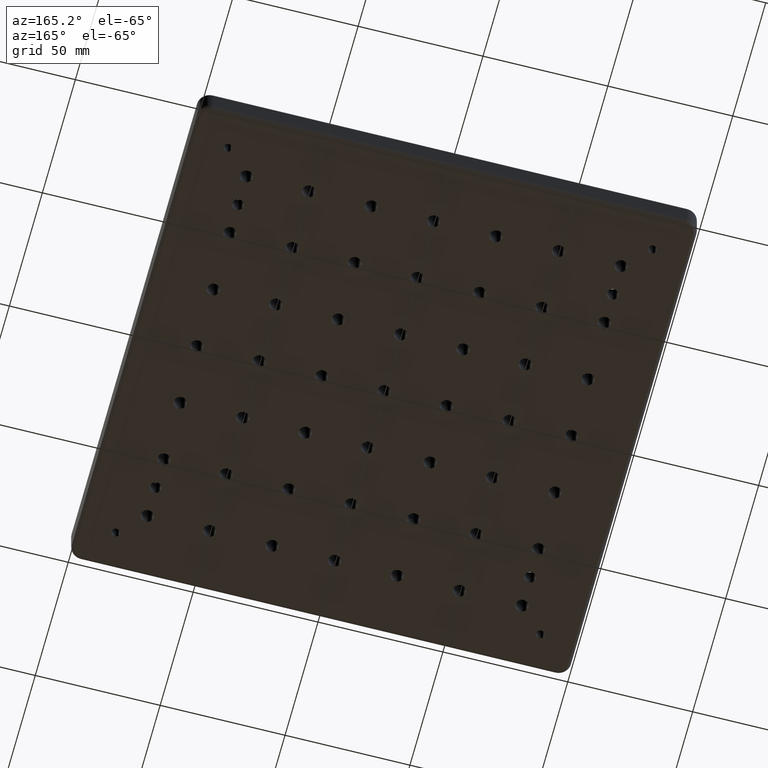
[diagram: clean part render]
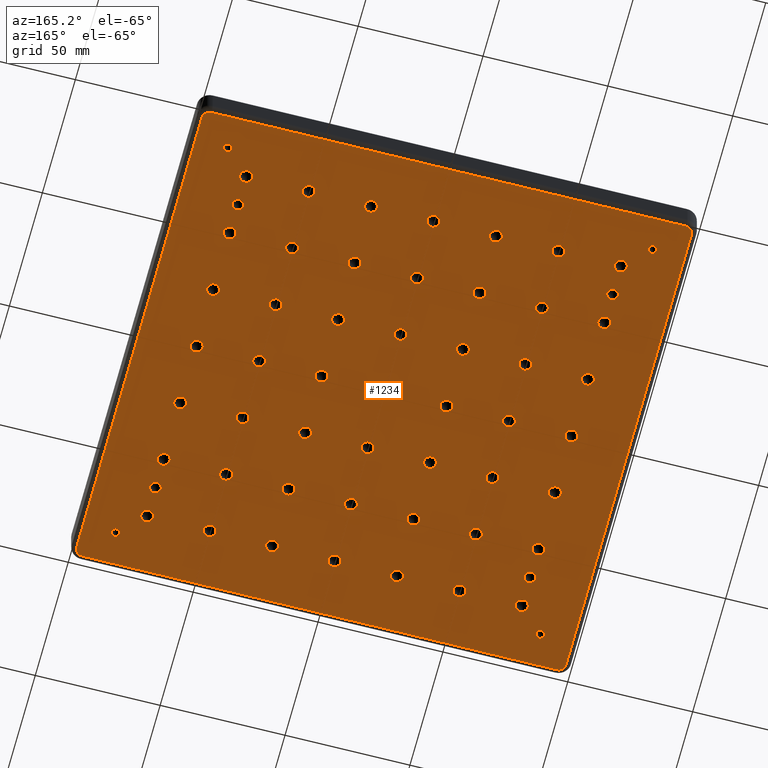
[diagram: same view with one face highlighted and labeled with its STEP entity id]
A machine part, auxiliary view. The second image highlights one B-rep face of the part: STEP entity #1234.
In plain terms, the highlighted planar face has unit normal (-0, 0, -1).
Its self-contained STEP definition (entity closure, byte-faithful):
#6 = DIRECTION ( 'NONE',  ( 1.000000000000000000, 0.0000000000000000000, 0.0000000000000000000 ) ) ;
#10 = ORIENTED_EDGE ( 'NONE', *, *, #3617, .T. ) ;
#12 = EDGE_CURVE ( 'NONE', #3297, #4747, #4633, .T. ) ;
#13 = DIRECTION ( 'NONE',  ( 1.000000000000000000, 0.0000000000000000000, 0.0000000000000000000 ) ) ;
#36 = VERTEX_POINT ( 'NONE', #1032 ) ;
#44 = EDGE_LOOP ( 'NONE', ( #1218, #1712 ) ) ;
#50 = VERTEX_POINT ( 'NONE', #1597 ) ;
#52 = CARTESIAN_POINT ( 'NONE',  ( -47.49999999999997900, -24.99999999999998600, -13.00000000000000000 ) ) ;
#56 = FACE_BOUND ( 'NONE', #4716, .T. ) ;
#63 = FACE_BOUND ( 'NONE', #227, .T. ) ;
#65 = DIRECTION ( 'NONE',  ( 1.000000000000000000, 0.0000000000000000000, 0.0000000000000000000 ) ) ;
#70 = CIRCLE ( 'NONE', #3379, 2.500000000000002200 ) ;
#71 = CIRCLE ( 'NONE', #1027, 2.500000000000002200 ) ;
#77 = AXIS2_PLACEMENT_3D ( 'NONE', #4696, #679, #2680 ) ;
#78 = ORIENTED_EDGE ( 'NONE', *, *, #3724, .T. ) ;
#80 = CARTESIAN_POINT ( 'NONE',  ( -72.75000000000000000, -62.49999999999998600, -12.99999999999999800 ) ) ;
#86 = CIRCLE ( 'NONE', #5070, 2.500000000000002200 ) ;
#88 = ORIENTED_EDGE ( 'NONE', *, *, #838, .T. ) ;
#96 = EDGE_LOOP ( 'NONE', ( #2124, #1575 ) ) ;
#98 = AXIS2_PLACEMENT_3D ( 'NONE', #3181, #2308, #698 ) ;
#102 = EDGE_LOOP ( 'NONE', ( #519, #4578 ) ) ;
#103 = CARTESIAN_POINT ( 'NONE',  ( 52.50000000000002800, -25.00000000000000700, -13.00000000000000000 ) ) ;
#107 = AXIS2_PLACEMENT_3D ( 'NONE', #2166, #170, #2202 ) ;
#111 = EDGE_CURVE ( 'NONE', #3162, #2429, #86, .T. ) ;
#114 = FACE_BOUND ( 'NONE', #345, .T. ) ;
#123 = AXIS2_PLACEMENT_3D ( 'NONE', #4194, #571, #515 ) ;
#132 = DIRECTION ( 'NONE',  ( 1.000000000000000000, 0.0000000000000000000, 0.0000000000000000000 ) ) ;
#146 = VERTEX_POINT ( 'NONE', #3585 ) ;
#155 = VERTEX_POINT ( 'NONE', #742 ) ;
#160 = CARTESIAN_POINT ( 'NONE',  ( 98.00000000000007100, -95.00000000000008500, -13.00000000000000000 ) ) ;
#170 = DIRECTION ( 'NONE',  ( -0.0000000000000000000, -0.0000000000000000000, 1.000000000000000000 ) ) ;
#174 = EDGE_CURVE ( 'NONE', #430, #539, #474, .T. ) ;
#177 = CARTESIAN_POINT ( 'NONE',  ( 2.500000000000030200, 50.00000000000000000, -13.00000000000000000 ) ) ;
#183 = FACE_BOUND ( 'NONE', #651, .T. ) ;
#185 = AXIS2_PLACEMENT_3D ( 'NONE', #5037, #3363, #5012 ) ;
#188 = CARTESIAN_POINT ( 'NONE',  ( 72.50000000000004300, 3.061616997868377200E-016, -13.00000000000000000 ) ) ;
#190 = VERTEX_POINT ( 'NONE', #3728 ) ;
#197 = EDGE_CURVE ( 'NONE', #5087, #1761, #4694, .T. ) ;
#198 = AXIS2_PLACEMENT_3D ( 'NONE', #1259, #4134, #4121 ) ;
#210 = EDGE_CURVE ( 'NONE', #2873, #4048, #2548, .T. ) ;
#216 = CIRCLE ( 'NONE', #4906, 2.500000000000002200 ) ;
#220 = CARTESIAN_POINT ( 'NONE',  ( -74.99999999999998600, -24.99999999999998200, -13.00000000000000000 ) ) ;
#225 = CIRCLE ( 'NONE', #2295, 2.500000000000002200 ) ;
#227 = EDGE_LOOP ( 'NONE', ( #2254, #2903 ) ) ;
#228 = AXIS2_PLACEMENT_3D ( 'NONE', #901, #3776, #4146 ) ;
#231 = DIRECTION ( 'NONE',  ( 1.000000000000000000, 0.0000000000000000000, 0.0000000000000000000 ) ) ;
#233 = VERTEX_POINT ( 'NONE', #2473 ) ;
#234 = VERTEX_POINT ( 'NONE', #4124 ) ;
#235 = CARTESIAN_POINT ( 'NONE',  ( -86.64999999999996300, -84.99999999999998600, -13.00000000000000000 ) ) ;
#241 = FACE_BOUND ( 'NONE', #3529, .T. ) ;
#242 = DIRECTION ( 'NONE',  ( 1.000000000000000000, 0.0000000000000000000, 0.0000000000000000000 ) ) ;
#244 = DIRECTION ( 'NONE',  ( -0.0000000000000000000, -0.0000000000000000000, 1.000000000000000000 ) ) ;
#246 = EDGE_CURVE ( 'NONE', #539, #430, #857, .T. ) ;
#248 = CARTESIAN_POINT ( 'NONE',  ( 50.00000000000002100, 24.99999999999999300, -13.00000000000000000 ) ) ;
#250 = FACE_BOUND ( 'NONE', #299, .T. ) ;
#254 = CIRCLE ( 'NONE', #4669, 2.500000000000002200 ) ;
#255 = DIRECTION ( 'NONE',  ( -0.0000000000000000000, -0.0000000000000000000, 1.000000000000000000 ) ) ;
#275 = DIRECTION ( 'NONE',  ( 1.000000000000000000, 0.0000000000000000000, 0.0000000000000000000 ) ) ;
#276 = CIRCLE ( 'NONE', #2790, 2.500000000000002200 ) ;
#279 = VERTEX_POINT ( 'NONE', #3010 ) ;
#288 = EDGE_CURVE ( 'NONE', #4747, #3297, #1421, .T. ) ;
#293 = CIRCLE ( 'NONE', #1640, 2.500000000000002200 ) ;
#299 = EDGE_LOOP ( 'NONE', ( #4779, #2631 ) ) ;
#300 = CIRCLE ( 'NONE', #4717, 2.250000000000001800 ) ;
#302 = DIRECTION ( 'NONE',  ( -0.0000000000000000000, -0.0000000000000000000, 1.000000000000000000 ) ) ;
#314 = DIRECTION ( 'NONE',  ( -0.0000000000000000000, -0.0000000000000000000, 1.000000000000000000 ) ) ;
#315 = DIRECTION ( 'NONE',  ( 1.000000000000000000, 0.0000000000000000000, 0.0000000000000000000 ) ) ;
#326 = AXIS2_PLACEMENT_3D ( 'NONE', #4708, #4655, #2701 ) ;
#330 = DIRECTION ( 'NONE',  ( -0.0000000000000000000, -0.0000000000000000000, 1.000000000000000000 ) ) ;
#336 = CARTESIAN_POINT ( 'NONE',  ( 25.00000000000002800, -50.00000000000000000, -13.00000000000000000 ) ) ;
#339 = VERTEX_POINT ( 'NONE', #612 ) ;
#345 = EDGE_LOOP ( 'NONE', ( #4488, #5150 ) ) ;
#349 = VERTEX_POINT ( 'NONE', #1861 ) ;
#351 = EDGE_LOOP ( 'NONE', ( #4430, #4930 ) ) ;
#352 = CARTESIAN_POINT ( 'NONE',  ( -74.99999999999998600, -74.99999999999998600, -13.00000000000000000 ) ) ;
#353 = EDGE_CURVE ( 'NONE', #876, #234, #2725, .T. ) ;
#363 = ORIENTED_EDGE ( 'NONE', *, *, #2076, .T. ) ;
#364 = ORIENTED_EDGE ( 'NONE', *, *, #2053, .T. ) ;
#368 = AXIS2_PLACEMENT_3D ( 'NONE', #1264, #1662, #3699 ) ;
#374 = DIRECTION ( 'NONE',  ( -0.0000000000000000000, -0.0000000000000000000, 1.000000000000000000 ) ) ;
#379 = DIRECTION ( 'NONE',  ( -0.0000000000000000000, -0.0000000000000000000, 1.000000000000000000 ) ) ;
#381 = EDGE_LOOP ( 'NONE', ( #5028, #1366, #4819, #2338, #2160, #1685, #1042, #3997 ) ) ;
#382 = EDGE_CURVE ( 'NONE', #36, #5116, #405, .T. ) ;
#385 = DIRECTION ( 'NONE',  ( 1.000000000000000000, 0.0000000000000000000, 0.0000000000000000000 ) ) ;
#390 = CARTESIAN_POINT ( 'NONE',  ( 85.00000000000007100, 85.00000000000001400, -13.00000000000000000 ) ) ;
#392 = DIRECTION ( 'NONE',  ( 1.000000000000000000, 0.0000000000000000000, 0.0000000000000000000 ) ) ;
#394 = CARTESIAN_POINT ( 'NONE',  ( -52.49999999999998600, 2.806173731541575100E-014, -13.00000000000000000 ) ) ;
#398 = AXIS2_PLACEMENT_3D ( 'NONE', #2514, #1263, #413 ) ;
#399 = VERTEX_POINT ( 'NONE', #2646 ) ;
#405 = CIRCLE ( 'NONE', #3731, 2.500000000000002200 ) ;
#407 = EDGE_LOOP ( 'NONE', ( #3725, #2347 ) ) ;
#411 = CARTESIAN_POINT ( 'NONE',  ( 2.775557561562891400E-014, -24.99999999999999300, -13.00000000000000000 ) ) ;
#413 = DIRECTION ( 'NONE',  ( 1.000000000000000000, 0.0000000000000000000, 0.0000000000000000000 ) ) ;
#414 = CARTESIAN_POINT ( 'NONE',  ( 75.00000000000004300, 49.99999999999999300, -13.00000000000000000 ) ) ;
#415 = EDGE_LOOP ( 'NONE', ( #3923, #2043 ) ) ;
#416 = VERTEX_POINT ( 'NONE', #4679 ) ;
#419 = CIRCLE ( 'NONE', #4075, 2.250000000000001800 ) ;
#421 = DIRECTION ( 'NONE',  ( -0.0000000000000000000, -0.0000000000000000000, 1.000000000000000000 ) ) ;
#422 = DIRECTION ( 'NONE',  ( -0.0000000000000000000, 1.000000000000000000, -0.0000000000000000000 ) ) ;
#425 = ORIENTED_EDGE ( 'NONE', *, *, #2245, .T. ) ;
#429 = DIRECTION ( 'NONE',  ( -0.0000000000000000000, -0.0000000000000000000, 1.000000000000000000 ) ) ;
#430 = VERTEX_POINT ( 'NONE', #1845 ) ;
#440 = CARTESIAN_POINT ( 'NONE',  ( -97.99999999999998600, 95.00000000000011400, -13.00000000000000000 ) ) ;
#448 = DIRECTION ( 'NONE',  ( 1.000000000000000000, 0.0000000000000000000, 0.0000000000000000000 ) ) ;
#455 = CIRCLE ( 'NONE', #1934, 2.500000000000002200 ) ;
#470 = CIRCLE ( 'NONE', #2862, 2.250000000000001800 ) ;
#473 = VERTEX_POINT ( 'NONE', #1115 ) ;
#474 = CIRCLE ( 'NONE', #1386, 2.500000000000002200 ) ;
#483 = DIRECTION ( 'NONE',  ( -0.0000000000000000000, -0.0000000000000000000, 1.000000000000000000 ) ) ;
#489 = AXIS2_PLACEMENT_3D ( 'NONE', #501, #3312, #4532 ) ;
#493 = VERTEX_POINT ( 'NONE', #5178 ) ;
#495 = CARTESIAN_POINT ( 'NONE',  ( 2.500000000000030200, 1.387778780781445700E-014, -13.00000000000000000 ) ) ;
#497 = EDGE_CURVE ( 'NONE', #349, #2379, #5221, .T. ) ;
#500 = ORIENTED_EDGE ( 'NONE', *, *, #2908, .T. ) ;
#501 = CARTESIAN_POINT ( 'NONE',  ( -49.99999999999997900, 2.775557561562891400E-014, -13.00000000000000000 ) ) ;
#503 = DIRECTION ( 'NONE',  ( -0.0000000000000000000, -0.0000000000000000000, 1.000000000000000000 ) ) ;
#504 = EDGE_LOOP ( 'NONE', ( #1056, #364 ) ) ;
#505 = AXIS2_PLACEMENT_3D ( 'NONE', #4862, #421, #2464 ) ;
#506 = FACE_BOUND ( 'NONE', #1107, .T. ) ;
#510 = FACE_BOUND ( 'NONE', #556, .T. ) ;
#515 = DIRECTION ( 'NONE',  ( 1.000000000000000000, 0.0000000000000000000, 0.0000000000000000000 ) ) ;
#519 = ORIENTED_EDGE ( 'NONE', *, *, #1975, .T. ) ;
#522 = DIRECTION ( 'NONE',  ( -0.0000000000000000000, -0.0000000000000000000, 1.000000000000000000 ) ) ;
#530 = ORIENTED_EDGE ( 'NONE', *, *, #1449, .T. ) ;
#531 = ORIENTED_EDGE ( 'NONE', *, *, #1654, .T. ) ;
#539 = VERTEX_POINT ( 'NONE', #1956 ) ;
#542 = DIRECTION ( 'NONE',  ( 1.000000000000000000, 0.0000000000000000000, 0.0000000000000000000 ) ) ;
#545 = ORIENTED_EDGE ( 'NONE', *, *, #3578, .T. ) ;
#549 = CIRCLE ( 'NONE', #5004, 2.500000000000002200 ) ;
#551 = VERTEX_POINT ( 'NONE', #4434 ) ;
#552 = DIRECTION ( 'NONE',  ( 1.000000000000000000, 0.0000000000000000000, 0.0000000000000000000 ) ) ;
#554 = DIRECTION ( 'NONE',  ( -0.0000000000000000000, -0.0000000000000000000, 1.000000000000000000 ) ) ;
#556 = EDGE_LOOP ( 'NONE', ( #530, #4796 ) ) ;
#559 = DIRECTION ( 'NONE',  ( 1.000000000000000000, 0.0000000000000000000, 0.0000000000000000000 ) ) ;
#561 = DIRECTION ( 'NONE',  ( 1.000000000000000000, 0.0000000000000000000, 0.0000000000000000000 ) ) ;
#570 = FACE_BOUND ( 'NONE', #5171, .T. ) ;
#571 = DIRECTION ( 'NONE',  ( -0.0000000000000000000, -0.0000000000000000000, 1.000000000000000000 ) ) ;
#573 = DIRECTION ( 'NONE',  ( -0.0000000000000000000, -0.0000000000000000000, 1.000000000000000000 ) ) ;
#575 = AXIS2_PLACEMENT_3D ( 'NONE', #3326, #877, #2455 ) ;
#579 = DIRECTION ( 'NONE',  ( -0.0000000000000000000, -0.0000000000000000000, 1.000000000000000000 ) ) ;
#588 = DIRECTION ( 'NONE',  ( -0.0000000000000000000, -0.0000000000000000000, 1.000000000000000000 ) ) ;
#611 = DIRECTION ( 'NONE',  ( -0.0000000000000000000, -0.0000000000000000000, 1.000000000000000000 ) ) ;
#612 = CARTESIAN_POINT ( 'NONE',  ( 27.50000000000002500, -75.00000000000001400, -13.00000000000000000 ) ) ;
#616 = AXIS2_PLACEMENT_3D ( 'NONE', #411, #2066, #4551 ) ;
#628 = CARTESIAN_POINT ( 'NONE',  ( 77.50000000000004300, 25.00000000000000000, -13.00000000000000000 ) ) ;
#629 = DIRECTION ( 'NONE',  ( -0.0000000000000000000, -0.0000000000000000000, -1.000000000000000000 ) ) ;
#634 = AXIS2_PLACEMENT_3D ( 'NONE', #1897, #3465, #1858 ) ;
#637 = AXIS2_PLACEMENT_3D ( 'NONE', #248, #3993, #5236 ) ;
#639 = DIRECTION ( 'NONE',  ( 1.000000000000000000, 0.0000000000000000000, 0.0000000000000000000 ) ) ;
#643 = FACE_BOUND ( 'NONE', #407, .T. ) ;
#644 = CIRCLE ( 'NONE', #3917, 2.500000000000002200 ) ;
#651 = EDGE_LOOP ( 'NONE', ( #1519, #4107 ) ) ;
#652 = CIRCLE ( 'NONE', #1145, 2.500000000000002200 ) ;
#659 = DIRECTION ( 'NONE',  ( -0.0000000000000000000, -0.0000000000000000000, 1.000000000000000000 ) ) ;
#660 = CARTESIAN_POINT ( 'NONE',  ( -74.99999999999998600, -49.99999999999997900, -13.00000000000000000 ) ) ;
#670 = DIRECTION ( 'NONE',  ( 1.000000000000000000, 0.0000000000000000000, 0.0000000000000000000 ) ) ;
#671 = VERTEX_POINT ( 'NONE', #4684 ) ;
#674 = VERTEX_POINT ( 'NONE', #4267 ) ;
#676 = ORIENTED_EDGE ( 'NONE', *, *, #3818, .T. ) ;
#679 = DIRECTION ( 'NONE',  ( -0.0000000000000000000, -0.0000000000000000000, 1.000000000000000000 ) ) ;
#683 = DIRECTION ( 'NONE',  ( 1.000000000000000000, 0.0000000000000000000, 0.0000000000000000000 ) ) ;
#684 = CIRCLE ( 'NONE', #3562, 2.500000000000002200 ) ;
#687 = CARTESIAN_POINT ( 'NONE',  ( 25.00000000000002800, -25.00000000000000000, -13.00000000000000000 ) ) ;
#688 = CARTESIAN_POINT ( 'NONE',  ( 2.775557561562891400E-014, -50.00000000000000000, -13.00000000000000000 ) ) ;
#694 = EDGE_CURVE ( 'NONE', #2233, #2653, #1341, .T. ) ;
#696 = AXIS2_PLACEMENT_3D ( 'NONE', #3259, #5258, #3219 ) ;
#698 = DIRECTION ( 'NONE',  ( 1.000000000000000000, 0.0000000000000000000, 0.0000000000000000000 ) ) ;
#700 = EDGE_CURVE ( 'NONE', #5079, #416, #652, .T. ) ;
#708 = AXIS2_PLACEMENT_3D ( 'NONE', #390, #5265, #3598 ) ;
#711 = DIRECTION ( 'NONE',  ( 1.000000000000000000, 0.0000000000000000000, 0.0000000000000000000 ) ) ;
#720 = DIRECTION ( 'NONE',  ( -0.0000000000000000000, -0.0000000000000000000, 1.000000000000000000 ) ) ;
#721 = DIRECTION ( 'NONE',  ( 1.000000000000000000, 0.0000000000000000000, 0.0000000000000000000 ) ) ;
#732 = CARTESIAN_POINT ( 'NONE',  ( 50.00000000000002100, 0.0000000000000000000, -13.00000000000000000 ) ) ;
#742 = CARTESIAN_POINT ( 'NONE',  ( -86.64999999999996300, 85.00000000000001400, -13.00000000000000000 ) ) ;
#761 = FACE_BOUND ( 'NONE', #3406, .T. ) ;
#763 = AXIS2_PLACEMENT_3D ( 'NONE', #1338, #3403, #3375 ) ;
#768 = DIRECTION ( 'NONE',  ( 1.000000000000000000, 0.0000000000000000000, 0.0000000000000000000 ) ) ;
#778 = AXIS2_PLACEMENT_3D ( 'NONE', #2486, #4085, #4484 ) ;
#779 = EDGE_CURVE ( 'NONE', #493, #2641, #5269, .T. ) ;
#784 = DIRECTION ( 'NONE',  ( -0.0000000000000000000, -0.0000000000000000000, -1.000000000000000000 ) ) ;
#799 = VERTEX_POINT ( 'NONE', #4320 ) ;
#804 = CARTESIAN_POINT ( 'NONE',  ( 52.50000000000002800, 49.99999999999998600, -13.00000000000000000 ) ) ;
#808 = CIRCLE ( 'NONE', #2557, 2.500000000000002200 ) ;
#812 = CARTESIAN_POINT ( 'NONE',  ( 47.50000000000002100, -50.00000000000000700, -13.00000000000000000 ) ) ;
#817 = CARTESIAN_POINT ( 'NONE',  ( 72.50000000000004300, -25.00000000000001400, -13.00000000000000000 ) ) ;
#818 = LINE ( 'NONE', #1963, #3638 ) ;
#822 = CARTESIAN_POINT ( 'NONE',  ( -47.49999999999997900, 75.00000000000004300, -13.00000000000000000 ) ) ;
#829 = DIRECTION ( 'NONE',  ( 1.000000000000000000, 0.0000000000000000000, 0.0000000000000000000 ) ) ;
#831 = FACE_BOUND ( 'NONE', #351, .T. ) ;
#832 = DIRECTION ( 'NONE',  ( -0.0000000000000000000, -0.0000000000000000000, 1.000000000000000000 ) ) ;
#834 = EDGE_CURVE ( 'NONE', #5285, #2904, #3667, .T. ) ;
#838 = EDGE_CURVE ( 'NONE', #5107, #2108, #2848, .T. ) ;
#841 = CIRCLE ( 'NONE', #198, 2.500000000000002200 ) ;
#843 = AXIS2_PLACEMENT_3D ( 'NONE', #4277, #659, #1060 ) ;
#857 = CIRCLE ( 'NONE', #947, 2.500000000000002200 ) ;
#862 = AXIS2_PLACEMENT_3D ( 'NONE', #1278, #4978, #4993 ) ;
#864 = ORIENTED_EDGE ( 'NONE', *, *, #3007, .T. ) ;
#870 = VERTEX_POINT ( 'NONE', #3190 ) ;
#876 = VERTEX_POINT ( 'NONE', #3641 ) ;
#877 = DIRECTION ( 'NONE',  ( -0.0000000000000000000, -0.0000000000000000000, 1.000000000000000000 ) ) ;
#884 = CIRCLE ( 'NONE', #1483, 1.649999999999998600 ) ;
#886 = VERTEX_POINT ( 'NONE', #4418 ) ;
#888 = DIRECTION ( 'NONE',  ( 1.000000000000000000, 0.0000000000000000000, 0.0000000000000000000 ) ) ;
#889 = EDGE_LOOP ( 'NONE', ( #4492, #3273 ) ) ;
#897 = EDGE_CURVE ( 'NONE', #2285, #1362, #70, .T. ) ;
#901 = CARTESIAN_POINT ( 'NONE',  ( -74.99999999999998600, 50.00000000000002100, -13.00000000000000000 ) ) ;
#904 = AXIS2_PLACEMENT_3D ( 'NONE', #1826, #2225, #3093 ) ;
#905 = EDGE_CURVE ( 'NONE', #279, #3885, #2586, .T. ) ;
#907 = CARTESIAN_POINT ( 'NONE',  ( 25.00000000000002800, 0.0000000000000000000, -13.00000000000000000 ) ) ;
#909 = DIRECTION ( 'NONE',  ( -0.0000000000000000000, -0.0000000000000000000, 1.000000000000000000 ) ) ;
#929 = DIRECTION ( 'NONE',  ( 1.000000000000000000, 0.0000000000000000000, 0.0000000000000000000 ) ) ;
#931 = CARTESIAN_POINT ( 'NONE',  ( -74.99999999999998600, 2.775557561562891400E-014, -13.00000000000000000 ) ) ;
#934 = DIRECTION ( 'NONE',  ( -1.000000000000000000, 0.0000000000000000000, 0.0000000000000000000 ) ) ;
#935 = ORIENTED_EDGE ( 'NONE', *, *, #2182, .T. ) ;
#943 = DIRECTION ( 'NONE',  ( -0.0000000000000000000, -0.0000000000000000000, 1.000000000000000000 ) ) ;
#947 = AXIS2_PLACEMENT_3D ( 'NONE', #931, #943, #132 ) ;
#950 = FACE_BOUND ( 'NONE', #96, .T. ) ;
#954 = DIRECTION ( 'NONE',  ( -0.0000000000000000000, -0.0000000000000000000, 1.000000000000000000 ) ) ;
#958 = FACE_BOUND ( 'NONE', #1029, .T. ) ;
#959 = CIRCLE ( 'NONE', #1066, 2.500000000000002200 ) ;
#960 = EDGE_CURVE ( 'NONE', #3807, #1445, #1213, .T. ) ;
#963 = CIRCLE ( 'NONE', #77, 2.500000000000002200 ) ;
#967 = VERTEX_POINT ( 'NONE', #1261 ) ;
#969 = CIRCLE ( 'NONE', #4102, 2.500000000000002200 ) ;
#977 = DIRECTION ( 'NONE',  ( 1.000000000000000000, 0.0000000000000000000, 0.0000000000000000000 ) ) ;
#988 = ORIENTED_EDGE ( 'NONE', *, *, #3107, .T. ) ;
#992 = ORIENTED_EDGE ( 'NONE', *, *, #2365, .T. ) ;
#994 = CARTESIAN_POINT ( 'NONE',  ( 72.50000000000004300, -50.00000000000001400, -13.00000000000000000 ) ) ;
#997 = ORIENTED_EDGE ( 'NONE', *, *, #5320, .T. ) ;
#1003 = VERTEX_POINT ( 'NONE', #2948 ) ;
#1005 = VERTEX_POINT ( 'NONE', #3344 ) ;
#1008 = DIRECTION ( 'NONE',  ( 1.000000000000000000, 0.0000000000000000000, 0.0000000000000000000 ) ) ;
#1009 = CARTESIAN_POINT ( 'NONE',  ( 75.00000000000004300, 25.00000000000000000, -13.00000000000000000 ) ) ;
#1010 = AXIS2_PLACEMENT_3D ( 'NONE', #3119, #1442, #670 ) ;
#1015 = AXIS2_PLACEMENT_3D ( 'NONE', #732, #4330, #275 ) ;
#1017 = DIRECTION ( 'NONE',  ( -0.0000000000000000000, -0.0000000000000000000, 1.000000000000000000 ) ) ;
#1018 = EDGE_CURVE ( 'NONE', #4206, #3279, #1403, .T. ) ;
#1023 = CARTESIAN_POINT ( 'NONE',  ( -72.49999999999998600, -74.99999999999998600, -13.00000000000000000 ) ) ;
#1025 = EDGE_CURVE ( 'NONE', #1968, #3366, #1462, .T. ) ;
#1027 = AXIS2_PLACEMENT_3D ( 'NONE', #1313, #3761, #65 ) ;
#1029 = EDGE_LOOP ( 'NONE', ( #2757, #1434 ) ) ;
#1032 = CARTESIAN_POINT ( 'NONE',  ( -22.49999999999997900, -49.99999999999998600, -13.00000000000000000 ) ) ;
#1036 = CIRCLE ( 'NONE', #1119, 2.500000000000002200 ) ;
#1040 = DIRECTION ( 'NONE',  ( -0.0000000000000000000, -0.0000000000000000000, 1.000000000000000000 ) ) ;
#1042 = ORIENTED_EDGE ( 'NONE', *, *, #3965, .T. ) ;
#1047 = CIRCLE ( 'NONE', #1809, 2.500000000000002200 ) ;
#1053 = CIRCLE ( 'NONE', #368, 2.250000000000001800 ) ;
#1056 = ORIENTED_EDGE ( 'NONE', *, *, #1073, .T. ) ;
#1058 = CIRCLE ( 'NONE', #2024, 2.500000000000002200 ) ;
#1060 = DIRECTION ( 'NONE',  ( 1.000000000000000000, 0.0000000000000000000, 0.0000000000000000000 ) ) ;
#1063 = VERTEX_POINT ( 'NONE', #2630 ) ;
#1066 = AXIS2_PLACEMENT_3D ( 'NONE', #2069, #2443, #4896 ) ;
#1069 = FACE_BOUND ( 'NONE', #2462, .T. ) ;
#1073 = EDGE_CURVE ( 'NONE', #1766, #3586, #4338, .T. ) ;
#1088 = EDGE_CURVE ( 'NONE', #4325, #4934, #3907, .T. ) ;
#1092 = PLANE ( 'NONE',  #3042 ) ;
#1102 = ORIENTED_EDGE ( 'NONE', *, *, #3955, .T. ) ;
#1107 = EDGE_LOOP ( 'NONE', ( #2344, #4713 ) ) ;
#1112 = DIRECTION ( 'NONE',  ( -1.000000000000000000, 0.0000000000000000000, 0.0000000000000000000 ) ) ;
#1114 = VERTEX_POINT ( 'NONE', #1465 ) ;
#1115 = CARTESIAN_POINT ( 'NONE',  ( 22.50000000000002800, 49.99999999999998600, -13.00000000000000000 ) ) ;
#1118 = VERTEX_POINT ( 'NONE', #4297 ) ;
#1119 = AXIS2_PLACEMENT_3D ( 'NONE', #2712, #1396, #4700 ) ;
#1129 = DIRECTION ( 'NONE',  ( -1.000000000000000000, 0.0000000000000000000, 0.0000000000000000000 ) ) ;
#1135 = CARTESIAN_POINT ( 'NONE',  ( -27.49999999999998200, 50.00000000000000000, -13.00000000000000000 ) ) ;
#1138 = ORIENTED_EDGE ( 'NONE', *, *, #897, .T. ) ;
#1139 = EDGE_CURVE ( 'NONE', #2572, #5104, #2125, .T. ) ;
#1141 = DIRECTION ( 'NONE',  ( 1.000000000000000000, 0.0000000000000000000, 0.0000000000000000000 ) ) ;
#1142 = VERTEX_POINT ( 'NONE', #3111 ) ;
#1144 = DIRECTION ( 'NONE',  ( -0.0000000000000000000, -0.0000000000000000000, 1.000000000000000000 ) ) ;
#1145 = AXIS2_PLACEMENT_3D ( 'NONE', #1850, #1438, #559 ) ;
#1146 = EDGE_CURVE ( 'NONE', #1340, #190, #1540, .T. ) ;
#1155 = CARTESIAN_POINT ( 'NONE',  ( 25.00000000000002100, 75.00000000000001400, -13.00000000000000000 ) ) ;
#1166 = DIRECTION ( 'NONE',  ( 1.000000000000000000, 0.0000000000000000000, 0.0000000000000000000 ) ) ;
#1172 = CARTESIAN_POINT ( 'NONE',  ( 25.00000000000002800, 49.99999999999998600, -13.00000000000000000 ) ) ;
#1186 = CARTESIAN_POINT ( 'NONE',  ( -47.49999999999997900, 25.00000000000002100, -13.00000000000000000 ) ) ;
#1189 = AXIS2_PLACEMENT_3D ( 'NONE', #1993, #3623, #5215 ) ;
#1193 = CIRCLE ( 'NONE', #1189, 2.500000000000002200 ) ;
#1198 = DIRECTION ( 'NONE',  ( 1.000000000000000000, 0.0000000000000000000, 0.0000000000000000000 ) ) ;
#1201 = CARTESIAN_POINT ( 'NONE',  ( 75.00000000000002800, 62.50000000000001400, -12.99999999999999800 ) ) ;
#1204 = FACE_BOUND ( 'NONE', #4903, .T. ) ;
#1205 = EDGE_CURVE ( 'NONE', #3313, #3123, #2842, .T. ) ;
#1209 = CARTESIAN_POINT ( 'NONE',  ( -95.00000000000011400, 95.00000000000011400, -13.00000000000000000 ) ) ;
#1211 = CARTESIAN_POINT ( 'NONE',  ( 86.65000000000004800, -84.99999999999998600, -13.00000000000000000 ) ) ;
#1212 = CIRCLE ( 'NONE', #4183, 2.500000000000002200 ) ;
#1213 = CIRCLE ( 'NONE', #2086, 2.500000000000002200 ) ;
#1216 = AXIS2_PLACEMENT_3D ( 'NONE', #220, #3910, #1451 ) ;
#1218 = ORIENTED_EDGE ( 'NONE', *, *, #2251, .T. ) ;
#1234 = ADVANCED_FACE ( 'NONE', ( #2120, #2835, #1727, #183, #2247, #3843, #63, #4279, #643, #4867, #2706, #958, #4666, #3202, #250, #4028, #3654, #950, #114, #4994, #831, #1721, #510, #4663, #2896, #570, #2516, #5126, #2451, #1787, #3388, #2305, #4932, #2766, #2637, #4022, #506, #1267, #4726, #1326, #3649, #3004, #56, #3900, #2950, #241, #1985, #1069, #3514, #3196, #4271, #1853, #1204, #2445, #761, #3262, #4205, #4990 ), #1092, .T. ) ;
#1237 = CARTESIAN_POINT ( 'NONE',  ( 2.500000000000030200, 75.00000000000001400, -13.00000000000000000 ) ) ;
#1238 = DIRECTION ( 'NONE',  ( -0.0000000000000000000, -0.0000000000000000000, 1.000000000000000000 ) ) ;
#1240 = ORIENTED_EDGE ( 'NONE', *, *, #2704, .T. ) ;
#1252 = CARTESIAN_POINT ( 'NONE',  ( -49.99999999999997900, -74.99999999999998600, -13.00000000000000000 ) ) ;
#1257 = ORIENTED_EDGE ( 'NONE', *, *, #4529, .T. ) ;
#1259 = CARTESIAN_POINT ( 'NONE',  ( 50.00000000000002100, -50.00000000000000700, -13.00000000000000000 ) ) ;
#1261 = CARTESIAN_POINT ( 'NONE',  ( -72.49999999999998600, 75.00000000000004300, -13.00000000000000000 ) ) ;
#1263 = DIRECTION ( 'NONE',  ( -0.0000000000000000000, -0.0000000000000000000, 1.000000000000000000 ) ) ;
#1264 = CARTESIAN_POINT ( 'NONE',  ( -75.00000000000000000, -62.49999999999998600, -12.99999999999999800 ) ) ;
#1267 = FACE_BOUND ( 'NONE', #4600, .T. ) ;
#1271 = AXIS2_PLACEMENT_3D ( 'NONE', #3734, #832, #3320 ) ;
#1272 = DIRECTION ( 'NONE',  ( 1.000000000000000000, 0.0000000000000000000, 0.0000000000000000000 ) ) ;
#1273 = CARTESIAN_POINT ( 'NONE',  ( 22.50000000000002100, 75.00000000000001400, -13.00000000000000000 ) ) ;
#1274 = CARTESIAN_POINT ( 'NONE',  ( -22.49999999999997900, 25.00000000000000700, -13.00000000000000000 ) ) ;
#1278 = CARTESIAN_POINT ( 'NONE',  ( -74.99999999999998600, 75.00000000000004300, -13.00000000000000000 ) ) ;
#1289 = DIRECTION ( 'NONE',  ( 1.000000000000000000, 1.460819769243625700E-016, -0.0000000000000000000 ) ) ;
#1293 = EDGE_LOOP ( 'NONE', ( #2373, #1474 ) ) ;
#1302 = VERTEX_POINT ( 'NONE', #2855 ) ;
#1308 = EDGE_LOOP ( 'NONE', ( #3300, #4847 ) ) ;
#1309 = EDGE_CURVE ( 'NONE', #4788, #3701, #884, .T. ) ;
#1313 = CARTESIAN_POINT ( 'NONE',  ( 75.00000000000004300, -75.00000000000001400, -13.00000000000000000 ) ) ;
#1323 = CARTESIAN_POINT ( 'NONE',  ( 77.25000000000000000, -62.50000000000001400, -12.99999999999999800 ) ) ;
#1326 = FACE_BOUND ( 'NONE', #44, .T. ) ;
#1327 = ORIENTED_EDGE ( 'NONE', *, *, #4991, .T. ) ;
#1331 = EDGE_CURVE ( 'NONE', #2763, #1302, #2511, .T. ) ;
#1338 = CARTESIAN_POINT ( 'NONE',  ( -24.99999999999998200, 75.00000000000004300, -13.00000000000000000 ) ) ;
#1339 = CARTESIAN_POINT ( 'NONE',  ( 25.00000000000002100, -75.00000000000001400, -13.00000000000000000 ) ) ;
#1340 = VERTEX_POINT ( 'NONE', #1237 ) ;
#1341 = CIRCLE ( 'NONE', #326, 2.500000000000002200 ) ;
#1344 = EDGE_CURVE ( 'NONE', #473, #399, #2573, .T. ) ;
#1346 = CARTESIAN_POINT ( 'NONE',  ( -49.99999999999997900, 25.00000000000002100, -13.00000000000000000 ) ) ;
#1353 = CARTESIAN_POINT ( 'NONE',  ( -24.99999999999998200, 1.387778780781445700E-014, -13.00000000000000000 ) ) ;
#1355 = ORIENTED_EDGE ( 'NONE', *, *, #3001, .T. ) ;
#1356 = CARTESIAN_POINT ( 'NONE',  ( -22.49999999999997900, 1.387778780781445700E-014, -13.00000000000000000 ) ) ;
#1357 = CARTESIAN_POINT ( 'NONE',  ( 2.500000000000030200, -50.00000000000000000, -13.00000000000000000 ) ) ;
#1362 = VERTEX_POINT ( 'NONE', #822 ) ;
#1366 = ORIENTED_EDGE ( 'NONE', *, *, #2241, .T. ) ;
#1378 = CIRCLE ( 'NONE', #2324, 2.500000000000002200 ) ;
#1379 = CARTESIAN_POINT ( 'NONE',  ( 72.50000000000004300, 75.00000000000001400, -13.00000000000000000 ) ) ;
#1382 = DIRECTION ( 'NONE',  ( 1.000000000000000000, 0.0000000000000000000, 0.0000000000000000000 ) ) ;
#1384 = ORIENTED_EDGE ( 'NONE', *, *, #960, .T. ) ;
#1386 = AXIS2_PLACEMENT_3D ( 'NONE', #5318, #2083, #4887 ) ;
#1393 = DIRECTION ( 'NONE',  ( -0.0000000000000000000, -0.0000000000000000000, 1.000000000000000000 ) ) ;
#1394 = ORIENTED_EDGE ( 'NONE', *, *, #1309, .T. ) ;
#1396 = DIRECTION ( 'NONE',  ( -0.0000000000000000000, -0.0000000000000000000, 1.000000000000000000 ) ) ;
#1397 = DIRECTION ( 'NONE',  ( -0.0000000000000000000, -0.0000000000000000000, 1.000000000000000000 ) ) ;
#1403 = CIRCLE ( 'NONE', #3823, 2.500000000000002200 ) ;
#1421 = CIRCLE ( 'NONE', #3006, 2.500000000000002200 ) ;
#1422 = AXIS2_PLACEMENT_3D ( 'NONE', #336, #3657, #2436 ) ;
#1434 = ORIENTED_EDGE ( 'NONE', *, *, #2444, .T. ) ;
#1436 = EDGE_LOOP ( 'NONE', ( #3255, #3882 ) ) ;
#1437 = AXIS2_PLACEMENT_3D ( 'NONE', #1252, #1665, #4522 ) ;
#1438 = DIRECTION ( 'NONE',  ( -0.0000000000000000000, -0.0000000000000000000, 1.000000000000000000 ) ) ;
#1439 = DIRECTION ( 'NONE',  ( 1.000000000000000000, 0.0000000000000000000, 0.0000000000000000000 ) ) ;
#1442 = DIRECTION ( 'NONE',  ( -0.0000000000000000000, -0.0000000000000000000, 1.000000000000000000 ) ) ;
#1444 = ORIENTED_EDGE ( 'NONE', *, *, #1025, .T. ) ;
#1445 = VERTEX_POINT ( 'NONE', #3047 ) ;
#1446 = CARTESIAN_POINT ( 'NONE',  ( 25.00000000000002800, 24.99999999999999300, -13.00000000000000000 ) ) ;
#1449 = EDGE_CURVE ( 'NONE', #3998, #5267, #4523, .T. ) ;
#1451 = DIRECTION ( 'NONE',  ( 1.000000000000000000, 0.0000000000000000000, 0.0000000000000000000 ) ) ;
#1452 = DIRECTION ( 'NONE',  ( 1.000000000000000000, 0.0000000000000000000, 0.0000000000000000000 ) ) ;
#1454 = CARTESIAN_POINT ( 'NONE',  ( -24.99999999999998200, -49.99999999999998600, -13.00000000000000000 ) ) ;
#1456 = AXIS2_PLACEMENT_3D ( 'NONE', #4680, #629, #4628 ) ;
#1460 = CARTESIAN_POINT ( 'NONE',  ( 77.50000000000004300, 0.0000000000000000000, -13.00000000000000000 ) ) ;
#1461 = EDGE_CURVE ( 'NONE', #2150, #4992, #4389, .T. ) ;
#1462 = CIRCLE ( 'NONE', #3924, 2.500000000000002200 ) ;
#1464 = CARTESIAN_POINT ( 'NONE',  ( 25.00000000000002800, -50.00000000000000000, -13.00000000000000000 ) ) ;
#1465 = CARTESIAN_POINT ( 'NONE',  ( -72.49999999999998600, 50.00000000000002100, -13.00000000000000000 ) ) ;
#1467 = DIRECTION ( 'NONE',  ( -0.0000000000000000000, -0.0000000000000000000, 1.000000000000000000 ) ) ;
#1471 = CIRCLE ( 'NONE', #763, 2.500000000000002200 ) ;
#1474 = ORIENTED_EDGE ( 'NONE', *, *, #2310, .T. ) ;
#1476 = CIRCLE ( 'NONE', #696, 2.500000000000002200 ) ;
#1483 = AXIS2_PLACEMENT_3D ( 'NONE', #4451, #3258, #6 ) ;
#1487 = CARTESIAN_POINT ( 'NONE',  ( -24.99999999999998200, 50.00000000000000000, -13.00000000000000000 ) ) ;
#1500 = CIRCLE ( 'NONE', #616, 2.500000000000002200 ) ;
#1509 = VERTEX_POINT ( 'NONE', #2817 ) ;
#1513 = DIRECTION ( 'NONE',  ( 1.000000000000000000, 0.0000000000000000000, 0.0000000000000000000 ) ) ;
#1519 = ORIENTED_EDGE ( 'NONE', *, *, #197, .T. ) ;
#1528 = CARTESIAN_POINT ( 'NONE',  ( -49.99999999999997900, 2.775557561562891400E-014, -13.00000000000000000 ) ) ;
#1529 = DIRECTION ( 'NONE',  ( -0.0000000000000000000, -0.0000000000000000000, 1.000000000000000000 ) ) ;
#1540 = CIRCLE ( 'NONE', #843, 2.500000000000002200 ) ;
#1542 = CIRCLE ( 'NONE', #5086, 2.500000000000002200 ) ;
#1544 = VERTEX_POINT ( 'NONE', #2745 ) ;
#1546 = DIRECTION ( 'NONE',  ( -0.0000000000000000000, -0.0000000000000000000, 1.000000000000000000 ) ) ;
#1548 = DIRECTION ( 'NONE',  ( -0.0000000000000000000, -0.0000000000000000000, 1.000000000000000000 ) ) ;
#1550 = EDGE_CURVE ( 'NONE', #4830, #2939, #2945, .T. ) ;
#1575 = ORIENTED_EDGE ( 'NONE', *, *, #5102, .T. ) ;
#1579 = EDGE_CURVE ( 'NONE', #2266, #5210, #3257, .T. ) ;
#1581 = VERTEX_POINT ( 'NONE', #817 ) ;
#1587 = AXIS2_PLACEMENT_3D ( 'NONE', #2353, #2756, #1513 ) ;
#1595 = EDGE_CURVE ( 'NONE', #5197, #3068, #4786, .T. ) ;
#1597 = CARTESIAN_POINT ( 'NONE',  ( 22.50000000000002100, -75.00000000000001400, -13.00000000000000000 ) ) ;
#1598 = VERTEX_POINT ( 'NONE', #394 ) ;
#1600 = AXIS2_PLACEMENT_3D ( 'NONE', #1353, #522, #561 ) ;
#1601 = EDGE_CURVE ( 'NONE', #886, #4919, #1378, .T. ) ;
#1620 = VERTEX_POINT ( 'NONE', #2479 ) ;
#1623 = CARTESIAN_POINT ( 'NONE',  ( 77.50000000000004300, 75.00000000000001400, -13.00000000000000000 ) ) ;
#1636 = CIRCLE ( 'NONE', #2897, 2.250000000000001800 ) ;
#1640 = AXIS2_PLACEMENT_3D ( 'NONE', #4615, #2176, #542 ) ;
#1643 = CARTESIAN_POINT ( 'NONE',  ( -72.49999999999998600, -24.99999999999998200, -13.00000000000000000 ) ) ;
#1649 = VERTEX_POINT ( 'NONE', #5020 ) ;
#1654 = EDGE_CURVE ( 'NONE', #1302, #2763, #4450, .T. ) ;
#1657 = CARTESIAN_POINT ( 'NONE',  ( 2.500000000000030200, -24.99999999999999300, -13.00000000000000000 ) ) ;
#1662 = DIRECTION ( 'NONE',  ( -0.0000000000000000000, -0.0000000000000000000, 1.000000000000000000 ) ) ;
#1664 = AXIS2_PLACEMENT_3D ( 'NONE', #4785, #3587, #1129 ) ;
#1665 = DIRECTION ( 'NONE',  ( -0.0000000000000000000, -0.0000000000000000000, 1.000000000000000000 ) ) ;
#1666 = EDGE_CURVE ( 'NONE', #1761, #5087, #300, .T. ) ;
#1677 = ORIENTED_EDGE ( 'NONE', *, *, #1802, .T. ) ;
#1683 = ORIENTED_EDGE ( 'NONE', *, *, #174, .T. ) ;
#1685 = ORIENTED_EDGE ( 'NONE', *, *, #1550, .T. ) ;
#1695 = VERTEX_POINT ( 'NONE', #2213 ) ;
#1706 = VERTEX_POINT ( 'NONE', #177 ) ;
#1711 = VERTEX_POINT ( 'NONE', #160 ) ;
#1712 = ORIENTED_EDGE ( 'NONE', *, *, #2580, .T. ) ;
#1717 = EDGE_CURVE ( 'NONE', #1620, #3474, #5180, .T. ) ;
#1719 = CARTESIAN_POINT ( 'NONE',  ( 52.50000000000002800, -50.00000000000000700, -13.00000000000000000 ) ) ;
#1721 = FACE_BOUND ( 'NONE', #2393, .T. ) ;
#1725 = DIRECTION ( 'NONE',  ( 1.000000000000000000, 0.0000000000000000000, 0.0000000000000000000 ) ) ;
#1727 = FACE_BOUND ( 'NONE', #5155, .T. ) ;
#1729 = AXIS2_PLACEMENT_3D ( 'NONE', #2435, #4399, #4852 ) ;
#1730 = DIRECTION ( 'NONE',  ( -0.0000000000000000000, -0.0000000000000000000, 1.000000000000000000 ) ) ;
#1732 = CARTESIAN_POINT ( 'NONE',  ( 25.00000000000002100, -75.00000000000001400, -13.00000000000000000 ) ) ;
#1734 = CIRCLE ( 'NONE', #3025, 1.649999999999998600 ) ;
#1737 = AXIS2_PLACEMENT_3D ( 'NONE', #1846, #3073, #5109 ) ;
#1754 = CARTESIAN_POINT ( 'NONE',  ( 75.00000000000004300, -50.00000000000001400, -13.00000000000000000 ) ) ;
#1761 = VERTEX_POINT ( 'NONE', #5060 ) ;
#1765 = DIRECTION ( 'NONE',  ( -0.0000000000000000000, -0.0000000000000000000, 1.000000000000000000 ) ) ;
#1766 = VERTEX_POINT ( 'NONE', #2986 ) ;
#1774 = DIRECTION ( 'NONE',  ( 1.000000000000000000, 0.0000000000000000000, 0.0000000000000000000 ) ) ;
#1777 = EDGE_CURVE ( 'NONE', #3279, #4206, #4849, .T. ) ;
#1779 = CARTESIAN_POINT ( 'NONE',  ( -49.99999999999997900, -74.99999999999998600, -13.00000000000000000 ) ) ;
#1784 = CARTESIAN_POINT ( 'NONE',  ( 75.00000000000004300, -25.00000000000001400, -13.00000000000000000 ) ) ;
#1787 = FACE_BOUND ( 'NONE', #1910, .T. ) ;
#1788 = CARTESIAN_POINT ( 'NONE',  ( 75.00000000000004300, 49.99999999999999300, -13.00000000000000000 ) ) ;
#1790 = DIRECTION ( 'NONE',  ( 1.000000000000000000, 0.0000000000000000000, 0.0000000000000000000 ) ) ;
#1795 = CARTESIAN_POINT ( 'NONE',  ( -47.49999999999997900, 50.00000000000001400, -13.00000000000000000 ) ) ;
#1796 = EDGE_CURVE ( 'NONE', #1711, #146, #3768, .T. ) ;
#1802 = EDGE_CURVE ( 'NONE', #2441, #3927, #293, .T. ) ;
#1809 = AXIS2_PLACEMENT_3D ( 'NONE', #1155, #2417, #1141 ) ;
#1812 = DIRECTION ( 'NONE',  ( -0.0000000000000000000, -0.0000000000000000000, 1.000000000000000000 ) ) ;
#1819 = AXIS2_PLACEMENT_3D ( 'NONE', #1172, #4569, #1439 ) ;
#1826 = CARTESIAN_POINT ( 'NONE',  ( 75.00000000000004300, -75.00000000000001400, -13.00000000000000000 ) ) ;
#1839 = EDGE_CURVE ( 'NONE', #5104, #2572, #4512, .T. ) ;
#1840 = VERTEX_POINT ( 'NONE', #3081 ) ;
#1845 = CARTESIAN_POINT ( 'NONE',  ( -72.49999999999998600, 2.775557561562891400E-014, -13.00000000000000000 ) ) ;
#1846 = CARTESIAN_POINT ( 'NONE',  ( 25.00000000000002100, 75.00000000000001400, -13.00000000000000000 ) ) ;
#1850 = CARTESIAN_POINT ( 'NONE',  ( 50.00000000000001400, -75.00000000000001400, -13.00000000000000000 ) ) ;
#1853 = FACE_BOUND ( 'NONE', #415, .T. ) ;
#1858 = DIRECTION ( 'NONE',  ( 1.000000000000000000, 0.0000000000000000000, 0.0000000000000000000 ) ) ;
#1861 = CARTESIAN_POINT ( 'NONE',  ( 47.50000000000002100, 49.99999999999998600, -13.00000000000000000 ) ) ;
#1863 = EDGE_CURVE ( 'NONE', #2934, #1711, #818, .T. ) ;
#1874 = CARTESIAN_POINT ( 'NONE',  ( -84.99999999999997200, 85.00000000000001400, -13.00000000000000000 ) ) ;
#1877 = EDGE_LOOP ( 'NONE', ( #4406, #4715 ) ) ;
#1880 = DIRECTION ( 'NONE',  ( 1.000000000000000000, 0.0000000000000000000, 0.0000000000000000000 ) ) ;
#1881 = VERTEX_POINT ( 'NONE', #5268 ) ;
#1887 = CARTESIAN_POINT ( 'NONE',  ( -52.49999999999998600, -24.99999999999998600, -13.00000000000000000 ) ) ;
#1895 = LINE ( 'NONE', #5214, #2870 ) ;
#1897 = CARTESIAN_POINT ( 'NONE',  ( 25.00000000000002800, -25.00000000000000000, -13.00000000000000000 ) ) ;
#1910 = EDGE_LOOP ( 'NONE', ( #1677, #78 ) ) ;
#1911 = ORIENTED_EDGE ( 'NONE', *, *, #2504, .T. ) ;
#1917 = DIRECTION ( 'NONE',  ( -0.0000000000000000000, -0.0000000000000000000, 1.000000000000000000 ) ) ;
#1921 = AXIS2_PLACEMENT_3D ( 'NONE', #2134, #909, #4996 ) ;
#1925 = DIRECTION ( 'NONE',  ( -0.0000000000000000000, -0.0000000000000000000, 1.000000000000000000 ) ) ;
#1932 = EDGE_CURVE ( 'NONE', #1509, #1063, #1193, .T. ) ;
#1934 = AXIS2_PLACEMENT_3D ( 'NONE', #5226, #1546, #711 ) ;
#1937 = DIRECTION ( 'NONE',  ( 1.000000000000000000, 0.0000000000000000000, 0.0000000000000000000 ) ) ;
#1938 = DIRECTION ( 'NONE',  ( 1.000000000000000000, 0.0000000000000000000, 0.0000000000000000000 ) ) ;
#1940 = ORIENTED_EDGE ( 'NONE', *, *, #700, .T. ) ;
#1956 = CARTESIAN_POINT ( 'NONE',  ( -77.49999999999998600, 2.806173731541575100E-014, -13.00000000000000000 ) ) ;
#1963 = CARTESIAN_POINT ( 'NONE',  ( 97.99999999999997200, 95.00000000000017100, -13.00000000000000000 ) ) ;
#1968 = VERTEX_POINT ( 'NONE', #3996 ) ;
#1975 = EDGE_CURVE ( 'NONE', #2210, #1005, #1058, .T. ) ;
#1976 = CARTESIAN_POINT ( 'NONE',  ( -52.49999999999998600, 25.00000000000002100, -13.00000000000000000 ) ) ;
#1983 = AXIS2_PLACEMENT_3D ( 'NONE', #4808, #1467, #4795 ) ;
#1985 = FACE_BOUND ( 'NONE', #3778, .T. ) ;
#1993 = CARTESIAN_POINT ( 'NONE',  ( 2.775557561562891400E-014, -75.00000000000000000, -13.00000000000000000 ) ) ;
#1998 = CIRCLE ( 'NONE', #862, 2.500000000000002200 ) ;
#2012 = DIRECTION ( 'NONE',  ( 1.000000000000000000, 0.0000000000000000000, 0.0000000000000000000 ) ) ;
#2016 = ORIENTED_EDGE ( 'NONE', *, *, #694, .T. ) ;
#2022 = VERTEX_POINT ( 'NONE', #5319 ) ;
#2024 = AXIS2_PLACEMENT_3D ( 'NONE', #2814, #3209, #721 ) ;
#2029 = CIRCLE ( 'NONE', #1422, 2.500000000000002200 ) ;
#2036 = CIRCLE ( 'NONE', #1737, 2.500000000000002200 ) ;
#2041 = CARTESIAN_POINT ( 'NONE',  ( -24.99999999999998200, 50.00000000000000000, -13.00000000000000000 ) ) ;
#2043 = ORIENTED_EDGE ( 'NONE', *, *, #353, .T. ) ;
#2053 = EDGE_CURVE ( 'NONE', #3586, #1766, #2935, .T. ) ;
#2055 = DIRECTION ( 'NONE',  ( -0.0000000000000000000, -0.0000000000000000000, 1.000000000000000000 ) ) ;
#2056 = DIRECTION ( 'NONE',  ( -0.0000000000000000000, -0.0000000000000000000, 1.000000000000000000 ) ) ;
#2057 = ORIENTED_EDGE ( 'NONE', *, *, #2137, .T. ) ;
#2066 = DIRECTION ( 'NONE',  ( -0.0000000000000000000, -0.0000000000000000000, 1.000000000000000000 ) ) ;
#2068 = EDGE_CURVE ( 'NONE', #674, #870, #225, .T. ) ;
#2069 = CARTESIAN_POINT ( 'NONE',  ( 75.00000000000004300, -25.00000000000001400, -13.00000000000000000 ) ) ;
#2070 = VECTOR ( 'NONE', #422, 1000.000000000000000 ) ;
#2074 = CIRCLE ( 'NONE', #3122, 2.500000000000002200 ) ;
#2076 = EDGE_CURVE ( 'NONE', #3440, #2804, #1053, .T. ) ;
#2078 = EDGE_LOOP ( 'NONE', ( #4970, #4649 ) ) ;
#2083 = DIRECTION ( 'NONE',  ( -0.0000000000000000000, -0.0000000000000000000, 1.000000000000000000 ) ) ;
#2084 = DIRECTION ( 'NONE',  ( -0.0000000000000000000, -0.0000000000000000000, 1.000000000000000000 ) ) ;
#2085 = EDGE_LOOP ( 'NONE', ( #2423, #2885 ) ) ;
#2086 = AXIS2_PLACEMENT_3D ( 'NONE', #2886, #4090, #13 ) ;
#2100 = CIRCLE ( 'NONE', #1456, 2.999999999999877900 ) ;
#2104 = DIRECTION ( 'NONE',  ( 1.000000000000000000, 0.0000000000000000000, 0.0000000000000000000 ) ) ;
#2105 = EDGE_CURVE ( 'NONE', #2611, #1649, #4190, .T. ) ;
#2108 = VERTEX_POINT ( 'NONE', #3716 ) ;
#2116 = ORIENTED_EDGE ( 'NONE', *, *, #4998, .T. ) ;
#2119 = DIRECTION ( 'NONE',  ( -0.0000000000000000000, -0.0000000000000000000, 1.000000000000000000 ) ) ;
#2120 = FACE_OUTER_BOUND ( 'NONE', #381, .T. ) ;
#2122 = AXIS2_PLACEMENT_3D ( 'NONE', #3865, #573, #1790 ) ;
#2123 = CARTESIAN_POINT ( 'NONE',  ( -27.49999999999998200, -49.99999999999998600, -13.00000000000000000 ) ) ;
#2124 = ORIENTED_EDGE ( 'NONE', *, *, #3787, .T. ) ;
#2125 = CIRCLE ( 'NONE', #4498, 2.500000000000002200 ) ;
#2134 = CARTESIAN_POINT ( 'NONE',  ( 50.00000000000002100, 49.99999999999998600, -13.00000000000000000 ) ) ;
#2137 = EDGE_CURVE ( 'NONE', #3149, #1118, #2563, .T. ) ;
#2141 = VERTEX_POINT ( 'NONE', #812 ) ;
#2150 = VERTEX_POINT ( 'NONE', #4913 ) ;
#2153 = CIRCLE ( 'NONE', #123, 2.500000000000002200 ) ;
#2155 = EDGE_CURVE ( 'NONE', #50, #339, #4069, .T. ) ;
#2158 = CARTESIAN_POINT ( 'NONE',  ( 47.50000000000001400, -75.00000000000001400, -13.00000000000000000 ) ) ;
#2159 = DIRECTION ( 'NONE',  ( -0.0000000000000000000, -0.0000000000000000000, 1.000000000000000000 ) ) ;
#2160 = ORIENTED_EDGE ( 'NONE', *, *, #2638, .T. ) ;
#2166 = CARTESIAN_POINT ( 'NONE',  ( -74.99999999999998600, 25.00000000000002800, -13.00000000000000000 ) ) ;
#2168 = CARTESIAN_POINT ( 'NONE',  ( -24.99999999999998200, 25.00000000000000700, -13.00000000000000000 ) ) ;
#2171 = EDGE_CURVE ( 'NONE', #2379, #349, #4580, .T. ) ;
#2176 = DIRECTION ( 'NONE',  ( -0.0000000000000000000, -0.0000000000000000000, 1.000000000000000000 ) ) ;
#2182 = EDGE_CURVE ( 'NONE', #2653, #2233, #684, .T. ) ;
#2195 = DIRECTION ( 'NONE',  ( 1.000000000000000000, 0.0000000000000000000, 0.0000000000000000000 ) ) ;
#2200 = ORIENTED_EDGE ( 'NONE', *, *, #4490, .T. ) ;
#2201 = LINE ( 'NONE', #2559, #2789 ) ;
#2202 = DIRECTION ( 'NONE',  ( 1.000000000000000000, 0.0000000000000000000, 0.0000000000000000000 ) ) ;
#2204 = CARTESIAN_POINT ( 'NONE',  ( -77.49999999999998600, 25.00000000000002800, -13.00000000000000000 ) ) ;
#2206 = ORIENTED_EDGE ( 'NONE', *, *, #4191, .T. ) ;
#2209 = EDGE_CURVE ( 'NONE', #155, #2924, #5294, .T. ) ;
#2210 = VERTEX_POINT ( 'NONE', #103 ) ;
#2212 = DIRECTION ( 'NONE',  ( 1.000000000000000000, 0.0000000000000000000, 0.0000000000000000000 ) ) ;
#2213 = CARTESIAN_POINT ( 'NONE',  ( -77.49999999999998600, 75.00000000000004300, -13.00000000000000000 ) ) ;
#2225 = DIRECTION ( 'NONE',  ( -0.0000000000000000000, -0.0000000000000000000, 1.000000000000000000 ) ) ;
#2233 = VERTEX_POINT ( 'NONE', #52 ) ;
#2235 = EDGE_LOOP ( 'NONE', ( #5248, #2351 ) ) ;
#2236 = EDGE_CURVE ( 'NONE', #2429, #3162, #5110, .T. ) ;
#2241 = EDGE_CURVE ( 'NONE', #671, #2934, #2100, .T. ) ;
#2245 = EDGE_CURVE ( 'NONE', #1840, #3499, #2036, .T. ) ;
#2247 = FACE_BOUND ( 'NONE', #3346, .T. ) ;
#2251 = EDGE_CURVE ( 'NONE', #1114, #4422, #2994, .T. ) ;
#2254 = ORIENTED_EDGE ( 'NONE', *, *, #3753, .T. ) ;
#2266 = VERTEX_POINT ( 'NONE', #4651 ) ;
#2269 = EDGE_CURVE ( 'NONE', #3609, #2274, #3367, .T. ) ;
#2274 = VERTEX_POINT ( 'NONE', #4245 ) ;
#2275 = EDGE_CURVE ( 'NONE', #1118, #3149, #4440, .T. ) ;
#2276 = AXIS2_PLACEMENT_3D ( 'NONE', #2553, #4140, #2999 ) ;
#2279 = DIRECTION ( 'NONE',  ( -1.000000000000000000, 1.460819769243625700E-016, -0.0000000000000000000 ) ) ;
#2280 = DIRECTION ( 'NONE',  ( -0.0000000000000000000, -0.0000000000000000000, 1.000000000000000000 ) ) ;
#2283 = AXIS2_PLACEMENT_3D ( 'NONE', #687, #302, #1937 ) ;
#2285 = VERTEX_POINT ( 'NONE', #4225 ) ;
#2290 = CARTESIAN_POINT ( 'NONE',  ( -75.00000000000000000, -62.49999999999998600, -12.99999999999999800 ) ) ;
#2295 = AXIS2_PLACEMENT_3D ( 'NONE', #4516, #2084, #392 ) ;
#2305 = FACE_BOUND ( 'NONE', #1308, .T. ) ;
#2307 = DIRECTION ( 'NONE',  ( 1.000000000000000000, 0.0000000000000000000, 0.0000000000000000000 ) ) ;
#2308 = DIRECTION ( 'NONE',  ( -0.0000000000000000000, -0.0000000000000000000, 1.000000000000000000 ) ) ;
#2310 = EDGE_CURVE ( 'NONE', #5116, #36, #2876, .T. ) ;
#2320 = DIRECTION ( 'NONE',  ( 1.000000000000000000, 0.0000000000000000000, 0.0000000000000000000 ) ) ;
#2324 = AXIS2_PLACEMENT_3D ( 'NONE', #2041, #3683, #2971 ) ;
#2325 = CIRCLE ( 'NONE', #2930, 2.500000000000002200 ) ;
#2329 = CARTESIAN_POINT ( 'NONE',  ( -95.00000000000011400, 98.00000000000000000, -13.00000000000000000 ) ) ;
#2338 = ORIENTED_EDGE ( 'NONE', *, *, #1796, .T. ) ;
#2344 = ORIENTED_EDGE ( 'NONE', *, *, #1205, .T. ) ;
#2347 = ORIENTED_EDGE ( 'NONE', *, *, #3128, .T. ) ;
#2351 = ORIENTED_EDGE ( 'NONE', *, *, #4590, .T. ) ;
#2353 = CARTESIAN_POINT ( 'NONE',  ( 50.00000000000002100, -50.00000000000000700, -13.00000000000000000 ) ) ;
#2358 = CARTESIAN_POINT ( 'NONE',  ( 75.00000000000004300, 25.00000000000000000, -13.00000000000000000 ) ) ;
#2365 = EDGE_CURVE ( 'NONE', #870, #674, #549, .T. ) ;
#2371 = CARTESIAN_POINT ( 'NONE',  ( 27.50000000000003200, 24.99999999999999300, -13.00000000000000000 ) ) ;
#2373 = ORIENTED_EDGE ( 'NONE', *, *, #382, .T. ) ;
#2379 = VERTEX_POINT ( 'NONE', #804 ) ;
#2380 = AXIS2_PLACEMENT_3D ( 'NONE', #1528, #1548, #2307 ) ;
#2381 = DIRECTION ( 'NONE',  ( 1.000000000000000000, 0.0000000000000000000, 0.0000000000000000000 ) ) ;
#2385 = CARTESIAN_POINT ( 'NONE',  ( -47.49999999999997900, -74.99999999999998600, -13.00000000000000000 ) ) ;
#2393 = EDGE_LOOP ( 'NONE', ( #3434, #4557 ) ) ;
#2394 = DIRECTION ( 'NONE',  ( 1.000000000000000000, 0.0000000000000000000, 0.0000000000000000000 ) ) ;
#2398 = EDGE_CURVE ( 'NONE', #5013, #3859, #4504, .T. ) ;
#2403 = AXIS2_PLACEMENT_3D ( 'NONE', #1454, #244, #683 ) ;
#2417 = DIRECTION ( 'NONE',  ( -0.0000000000000000000, -0.0000000000000000000, 1.000000000000000000 ) ) ;
#2423 = ORIENTED_EDGE ( 'NONE', *, *, #4767, .T. ) ;
#2429 = VERTEX_POINT ( 'NONE', #4844 ) ;
#2433 = DIRECTION ( 'NONE',  ( -0.0000000000000000000, -0.0000000000000000000, 1.000000000000000000 ) ) ;
#2434 = ORIENTED_EDGE ( 'NONE', *, *, #4066, .T. ) ;
#2435 = CARTESIAN_POINT ( 'NONE',  ( 2.775557561562891400E-014, 25.00000000000000700, -13.00000000000000000 ) ) ;
#2436 = DIRECTION ( 'NONE',  ( 1.000000000000000000, 0.0000000000000000000, 0.0000000000000000000 ) ) ;
#2438 = CARTESIAN_POINT ( 'NONE',  ( -74.99999999999998600, -49.99999999999997900, -13.00000000000000000 ) ) ;
#2441 = VERTEX_POINT ( 'NONE', #2371 ) ;
#2443 = DIRECTION ( 'NONE',  ( -0.0000000000000000000, -0.0000000000000000000, 1.000000000000000000 ) ) ;
#2444 = EDGE_CURVE ( 'NONE', #551, #3118, #3495, .T. ) ;
#2445 = FACE_BOUND ( 'NONE', #4380, .T. ) ;
#2451 = FACE_BOUND ( 'NONE', #3678, .T. ) ;
#2455 = DIRECTION ( 'NONE',  ( 1.000000000000000000, 0.0000000000000000000, 0.0000000000000000000 ) ) ;
#2458 = DIRECTION ( 'NONE',  ( 1.000000000000000000, 0.0000000000000000000, 0.0000000000000000000 ) ) ;
#2459 = CIRCLE ( 'NONE', #1437, 2.500000000000002200 ) ;
#2462 = EDGE_LOOP ( 'NONE', ( #3189, #2628 ) ) ;
#2464 = DIRECTION ( 'NONE',  ( 1.000000000000000000, 0.0000000000000000000, 0.0000000000000000000 ) ) ;
#2470 = CIRCLE ( 'NONE', #5049, 1.649999999999998600 ) ;
#2473 = CARTESIAN_POINT ( 'NONE',  ( -2.499999999999974700, 50.00000000000000000, -13.00000000000000000 ) ) ;
#2479 = CARTESIAN_POINT ( 'NONE',  ( -2.499999999999974700, 1.418394950760129500E-014, -13.00000000000000000 ) ) ;
#2485 = ORIENTED_EDGE ( 'NONE', *, *, #111, .T. ) ;
#2486 = CARTESIAN_POINT ( 'NONE',  ( 25.00000000000002800, 49.99999999999998600, -13.00000000000000000 ) ) ;
#2504 = EDGE_CURVE ( 'NONE', #1881, #3828, #419, .T. ) ;
#2508 = DIRECTION ( 'NONE',  ( -0.0000000000000000000, -0.0000000000000000000, 1.000000000000000000 ) ) ;
#2511 = CIRCLE ( 'NONE', #505, 2.250000000000001800 ) ;
#2513 = CARTESIAN_POINT ( 'NONE',  ( 47.50000000000002100, 24.99999999999999300, -13.00000000000000000 ) ) ;
#2514 = CARTESIAN_POINT ( 'NONE',  ( 75.00000000000000000, -62.50000000000001400, -12.99999999999999800 ) ) ;
#2516 = FACE_BOUND ( 'NONE', #3324, .T. ) ;
#2533 = CIRCLE ( 'NONE', #3062, 2.500000000000002200 ) ;
#2540 = EDGE_LOOP ( 'NONE', ( #3874, #545 ) ) ;
#2542 = CIRCLE ( 'NONE', #4764, 2.500000000000002200 ) ;
#2545 = VERTEX_POINT ( 'NONE', #1274 ) ;
#2548 = CIRCLE ( 'NONE', #575, 1.649999999999998600 ) ;
#2553 = CARTESIAN_POINT ( 'NONE',  ( -24.99999999999998200, -24.99999999999999300, -13.00000000000000000 ) ) ;
#2557 = AXIS2_PLACEMENT_3D ( 'NONE', #4278, #588, #1008 ) ;
#2559 = CARTESIAN_POINT ( 'NONE',  ( -95.00000000000011400, 98.00000000000000000, -13.00000000000000000 ) ) ;
#2563 = CIRCLE ( 'NONE', #5209, 2.500000000000002200 ) ;
#2568 = DIRECTION ( 'NONE',  ( -0.0000000000000000000, -0.0000000000000000000, 1.000000000000000000 ) ) ;
#2572 = VERTEX_POINT ( 'NONE', #2942 ) ;
#2573 = CIRCLE ( 'NONE', #778, 2.500000000000002200 ) ;
#2574 = CARTESIAN_POINT ( 'NONE',  ( -74.99999999999998600, 25.00000000000002800, -13.00000000000000000 ) ) ;
#2580 = EDGE_CURVE ( 'NONE', #4422, #1114, #5100, .T. ) ;
#2585 = CARTESIAN_POINT ( 'NONE',  ( 95.00000000000017100, -95.00000000000008500, -13.00000000000000000 ) ) ;
#2586 = CIRCLE ( 'NONE', #708, 1.649999999999998600 ) ;
#2593 = DIRECTION ( 'NONE',  ( -0.0000000000000000000, -0.0000000000000000000, 1.000000000000000000 ) ) ;
#2605 = ORIENTED_EDGE ( 'NONE', *, *, #246, .T. ) ;
#2607 = CARTESIAN_POINT ( 'NONE',  ( 50.00000000000002100, 24.99999999999999300, -13.00000000000000000 ) ) ;
#2611 = VERTEX_POINT ( 'NONE', #5008 ) ;
#2614 = CARTESIAN_POINT ( 'NONE',  ( 75.00000000000004300, -50.00000000000001400, -13.00000000000000000 ) ) ;
#2625 = DIRECTION ( 'NONE',  ( 1.000000000000000000, 0.0000000000000000000, 0.0000000000000000000 ) ) ;
#2628 = ORIENTED_EDGE ( 'NONE', *, *, #2155, .T. ) ;
#2630 = CARTESIAN_POINT ( 'NONE',  ( 2.500000000000030200, -75.00000000000000000, -13.00000000000000000 ) ) ;
#2631 = ORIENTED_EDGE ( 'NONE', *, *, #1088, .T. ) ;
#2637 = FACE_BOUND ( 'NONE', #2540, .T. ) ;
#2638 = EDGE_CURVE ( 'NONE', #146, #4830, #1895, .T. ) ;
#2641 = VERTEX_POINT ( 'NONE', #3526 ) ;
#2644 = DIRECTION ( 'NONE',  ( 1.000000000000000000, 0.0000000000000000000, 0.0000000000000000000 ) ) ;
#2646 = CARTESIAN_POINT ( 'NONE',  ( 27.50000000000003200, 49.99999999999998600, -13.00000000000000000 ) ) ;
#2652 = CIRCLE ( 'NONE', #4876, 2.500000000000002200 ) ;
#2653 = VERTEX_POINT ( 'NONE', #1887 ) ;
#2672 = CARTESIAN_POINT ( 'NONE',  ( -2.499999999999974700, -24.99999999999999300, -13.00000000000000000 ) ) ;
#2674 = ORIENTED_EDGE ( 'NONE', *, *, #4736, .T. ) ;
#2677 = DIRECTION ( 'NONE',  ( 1.000000000000000000, 0.0000000000000000000, 0.0000000000000000000 ) ) ;
#2680 = DIRECTION ( 'NONE',  ( 1.000000000000000000, 0.0000000000000000000, 0.0000000000000000000 ) ) ;
#2682 = ORIENTED_EDGE ( 'NONE', *, *, #4139, .T. ) ;
#2686 = DIRECTION ( 'NONE',  ( -0.0000000000000000000, -0.0000000000000000000, 1.000000000000000000 ) ) ;
#2701 = DIRECTION ( 'NONE',  ( 1.000000000000000000, 0.0000000000000000000, 0.0000000000000000000 ) ) ;
#2704 = EDGE_CURVE ( 'NONE', #799, #2022, #2029, .T. ) ;
#2706 = FACE_BOUND ( 'NONE', #4818, .T. ) ;
#2712 = CARTESIAN_POINT ( 'NONE',  ( 50.00000000000002100, -25.00000000000000700, -13.00000000000000000 ) ) ;
#2725 = CIRCLE ( 'NONE', #904, 2.500000000000002200 ) ;
#2744 = ORIENTED_EDGE ( 'NONE', *, *, #1139, .T. ) ;
#2745 = CARTESIAN_POINT ( 'NONE',  ( -27.49999999999998200, -24.99999999999999300, -13.00000000000000000 ) ) ;
#2753 = DIRECTION ( 'NONE',  ( 1.000000000000000000, 0.0000000000000000000, 0.0000000000000000000 ) ) ;
#2756 = DIRECTION ( 'NONE',  ( -0.0000000000000000000, -0.0000000000000000000, 1.000000000000000000 ) ) ;
#2757 = ORIENTED_EDGE ( 'NONE', *, *, #5276, .T. ) ;
#2758 = DIRECTION ( 'NONE',  ( -0.0000000000000000000, -0.0000000000000000000, 1.000000000000000000 ) ) ;
#2763 = VERTEX_POINT ( 'NONE', #3248 ) ;
#2765 = ORIENTED_EDGE ( 'NONE', *, *, #3445, .T. ) ;
#2766 = FACE_BOUND ( 'NONE', #3241, .T. ) ;
#2767 = CARTESIAN_POINT ( 'NONE',  ( 85.00000000000007100, 85.00000000000001400, -13.00000000000000000 ) ) ;
#2770 = DIRECTION ( 'NONE',  ( -0.0000000000000000000, -0.0000000000000000000, 1.000000000000000000 ) ) ;
#2778 = ORIENTED_EDGE ( 'NONE', *, *, #905, .T. ) ;
#2783 = AXIS2_PLACEMENT_3D ( 'NONE', #1788, #5052, #552 ) ;
#2789 = VECTOR ( 'NONE', #1289, 1000.000000000000000 ) ;
#2790 = AXIS2_PLACEMENT_3D ( 'NONE', #1487, #2770, #2753 ) ;
#2804 = VERTEX_POINT ( 'NONE', #4886 ) ;
#2808 = DIRECTION ( 'NONE',  ( -1.000000000000000000, 0.0000000000000000000, 0.0000000000000000000 ) ) ;
#2811 = EDGE_CURVE ( 'NONE', #3499, #1840, #1047, .T. ) ;
#2814 = CARTESIAN_POINT ( 'NONE',  ( 50.00000000000002100, -25.00000000000000700, -13.00000000000000000 ) ) ;
#2817 = CARTESIAN_POINT ( 'NONE',  ( -2.499999999999974700, -75.00000000000000000, -13.00000000000000000 ) ) ;
#2833 = EDGE_LOOP ( 'NONE', ( #4341, #4068 ) ) ;
#2835 = FACE_BOUND ( 'NONE', #4126, .T. ) ;
#2841 = AXIS2_PLACEMENT_3D ( 'NONE', #1464, #1040, #3909 ) ;
#2842 = CIRCLE ( 'NONE', #1216, 2.500000000000002200 ) ;
#2848 = CIRCLE ( 'NONE', #1729, 2.500000000000002200 ) ;
#2855 = CARTESIAN_POINT ( 'NONE',  ( 77.25000000000002800, 62.50000000000001400, -12.99999999999999800 ) ) ;
#2862 = AXIS2_PLACEMENT_3D ( 'NONE', #4988, #2508, #888 ) ;
#2870 = VECTOR ( 'NONE', #2279, 1000.000000000000000 ) ;
#2873 = VERTEX_POINT ( 'NONE', #1211 ) ;
#2876 = CIRCLE ( 'NONE', #2403, 2.500000000000002200 ) ;
#2880 = CARTESIAN_POINT ( 'NONE',  ( -74.99999999999997200, 62.50000000000004300, -12.99999999999999800 ) ) ;
#2885 = ORIENTED_EDGE ( 'NONE', *, *, #779, .T. ) ;
#2886 = CARTESIAN_POINT ( 'NONE',  ( -49.99999999999997900, -49.99999999999998600, -13.00000000000000000 ) ) ;
#2891 = AXIS2_PLACEMENT_3D ( 'NONE', #2574, #5322, #4081 ) ;
#2894 = CARTESIAN_POINT ( 'NONE',  ( 22.50000000000002800, 24.99999999999999300, -13.00000000000000000 ) ) ;
#2896 = FACE_BOUND ( 'NONE', #4787, .T. ) ;
#2897 = AXIS2_PLACEMENT_3D ( 'NONE', #2290, #5106, #1452 ) ;
#2903 = ORIENTED_EDGE ( 'NONE', *, *, #2209, .T. ) ;
#2904 = VERTEX_POINT ( 'NONE', #2513 ) ;
#2908 = EDGE_CURVE ( 'NONE', #1445, #3807, #4839, .T. ) ;
#2924 = VERTEX_POINT ( 'NONE', #3314 ) ;
#2930 = AXIS2_PLACEMENT_3D ( 'NONE', #1446, #4309, #2320 ) ;
#2932 = EDGE_CURVE ( 'NONE', #5267, #3998, #1500, .T. ) ;
#2934 = VERTEX_POINT ( 'NONE', #4136 ) ;
#2935 = CIRCLE ( 'NONE', #4363, 2.500000000000002200 ) ;
#2939 = VERTEX_POINT ( 'NONE', #3272 ) ;
#2942 = CARTESIAN_POINT ( 'NONE',  ( -22.49999999999997900, -75.00000000000000000, -13.00000000000000000 ) ) ;
#2945 = CIRCLE ( 'NONE', #1664, 2.999999999999877900 ) ;
#2946 = CARTESIAN_POINT ( 'NONE',  ( 25.00000000000002800, 0.0000000000000000000, -13.00000000000000000 ) ) ;
#2948 = CARTESIAN_POINT ( 'NONE',  ( 77.50000000000004300, -25.00000000000001400, -13.00000000000000000 ) ) ;
#2950 = FACE_BOUND ( 'NONE', #5015, .T. ) ;
#2971 = DIRECTION ( 'NONE',  ( 1.000000000000000000, 0.0000000000000000000, 0.0000000000000000000 ) ) ;
#2975 = CARTESIAN_POINT ( 'NONE',  ( 75.00000000000004300, 0.0000000000000000000, -13.00000000000000000 ) ) ;
#2980 = CIRCLE ( 'NONE', #3941, 2.500000000000002200 ) ;
#2986 = CARTESIAN_POINT ( 'NONE',  ( 77.50000000000004300, 49.99999999999999300, -13.00000000000000000 ) ) ;
#2994 = CIRCLE ( 'NONE', #2122, 2.500000000000002200 ) ;
#2999 = DIRECTION ( 'NONE',  ( 1.000000000000000000, 0.0000000000000000000, 0.0000000000000000000 ) ) ;
#3001 = EDGE_CURVE ( 'NONE', #2545, #3477, #216, .T. ) ;
#3003 = DIRECTION ( 'NONE',  ( 1.000000000000000000, 0.0000000000000000000, 0.0000000000000000000 ) ) ;
#3004 = FACE_BOUND ( 'NONE', #4141, .T. ) ;
#3006 = AXIS2_PLACEMENT_3D ( 'NONE', #4995, #2568, #1382 ) ;
#3007 = EDGE_CURVE ( 'NONE', #3474, #1620, #2153, .T. ) ;
#3009 = DIRECTION ( 'NONE',  ( -0.0000000000000000000, -0.0000000000000000000, 1.000000000000000000 ) ) ;
#3010 = CARTESIAN_POINT ( 'NONE',  ( 83.35000000000008000, 85.00000000000001400, -13.00000000000000000 ) ) ;
#3011 = CIRCLE ( 'NONE', #3754, 2.500000000000002200 ) ;
#3025 = AXIS2_PLACEMENT_3D ( 'NONE', #2767, #5204, #1166 ) ;
#3038 = CARTESIAN_POINT ( 'NONE',  ( -24.99999999999998200, -75.00000000000000000, -13.00000000000000000 ) ) ;
#3042 = AXIS2_PLACEMENT_3D ( 'NONE', #3576, #3969, #1112 ) ;
#3047 = CARTESIAN_POINT ( 'NONE',  ( -47.49999999999997900, -49.99999999999998600, -13.00000000000000000 ) ) ;
#3048 = DIRECTION ( 'NONE',  ( 1.000000000000000000, 0.0000000000000000000, 0.0000000000000000000 ) ) ;
#3058 = DIRECTION ( 'NONE',  ( 1.000000000000000000, 0.0000000000000000000, 0.0000000000000000000 ) ) ;
#3061 = ORIENTED_EDGE ( 'NONE', *, *, #497, .T. ) ;
#3062 = AXIS2_PLACEMENT_3D ( 'NONE', #4417, #2433, #3639 ) ;
#3063 = CARTESIAN_POINT ( 'NONE',  ( -74.99999999999998600, -74.99999999999998600, -13.00000000000000000 ) ) ;
#3068 = VERTEX_POINT ( 'NONE', #2204 ) ;
#3071 = EDGE_CURVE ( 'NONE', #416, #5079, #808, .T. ) ;
#3073 = DIRECTION ( 'NONE',  ( -0.0000000000000000000, -0.0000000000000000000, 1.000000000000000000 ) ) ;
#3081 = CARTESIAN_POINT ( 'NONE',  ( 27.50000000000002500, 75.00000000000001400, -13.00000000000000000 ) ) ;
#3084 = CIRCLE ( 'NONE', #3129, 1.649999999999998600 ) ;
#3089 = CARTESIAN_POINT ( 'NONE',  ( -49.99999999999997900, 50.00000000000001400, -13.00000000000000000 ) ) ;
#3093 = DIRECTION ( 'NONE',  ( 1.000000000000000000, 0.0000000000000000000, 0.0000000000000000000 ) ) ;
#3103 = ORIENTED_EDGE ( 'NONE', *, *, #4857, .T. ) ;
#3107 = EDGE_CURVE ( 'NONE', #2804, #3440, #1636, .T. ) ;
#3111 = CARTESIAN_POINT ( 'NONE',  ( -47.49999999999997900, 2.775557561562891400E-014, -13.00000000000000000 ) ) ;
#3115 = AXIS2_PLACEMENT_3D ( 'NONE', #2585, #5043, #934 ) ;
#3118 = VERTEX_POINT ( 'NONE', #1023 ) ;
#3119 = CARTESIAN_POINT ( 'NONE',  ( -24.99999999999998200, -75.00000000000000000, -13.00000000000000000 ) ) ;
#3122 = AXIS2_PLACEMENT_3D ( 'NONE', #4098, #4166, #1725 ) ;
#3123 = VERTEX_POINT ( 'NONE', #4314 ) ;
#3128 = EDGE_CURVE ( 'NONE', #4048, #2873, #3750, .T. ) ;
#3129 = AXIS2_PLACEMENT_3D ( 'NONE', #3389, #1393, #4672 ) ;
#3148 = EDGE_CURVE ( 'NONE', #1005, #2210, #1036, .T. ) ;
#3149 = VERTEX_POINT ( 'NONE', #994 ) ;
#3150 = EDGE_LOOP ( 'NONE', ( #1394, #2682 ) ) ;
#3162 = VERTEX_POINT ( 'NONE', #628 ) ;
#3181 = CARTESIAN_POINT ( 'NONE',  ( -74.99999999999998600, -24.99999999999998200, -13.00000000000000000 ) ) ;
#3189 = ORIENTED_EDGE ( 'NONE', *, *, #3655, .T. ) ;
#3190 = CARTESIAN_POINT ( 'NONE',  ( 52.50000000000002100, 75.00000000000001400, -13.00000000000000000 ) ) ;
#3192 = ORIENTED_EDGE ( 'NONE', *, *, #4875, .T. ) ;
#3195 = EDGE_CURVE ( 'NONE', #1649, #2611, #4961, .T. ) ;
#3196 = FACE_BOUND ( 'NONE', #3688, .T. ) ;
#3198 = VERTEX_POINT ( 'NONE', #2385 ) ;
#3199 = CARTESIAN_POINT ( 'NONE',  ( -72.74999999999997200, 62.50000000000004300, -12.99999999999999800 ) ) ;
#3202 = FACE_BOUND ( 'NONE', #3913, .T. ) ;
#3204 = EDGE_CURVE ( 'NONE', #4919, #886, #276, .T. ) ;
#3209 = DIRECTION ( 'NONE',  ( -0.0000000000000000000, -0.0000000000000000000, 1.000000000000000000 ) ) ;
#3210 = EDGE_CURVE ( 'NONE', #4992, #2150, #3868, .T. ) ;
#3213 = CIRCLE ( 'NONE', #634, 2.500000000000002200 ) ;
#3219 = DIRECTION ( 'NONE',  ( 1.000000000000000000, 0.0000000000000000000, 0.0000000000000000000 ) ) ;
#3230 = EDGE_CURVE ( 'NONE', #3123, #3313, #3742, .T. ) ;
#3241 = EDGE_LOOP ( 'NONE', ( #4169, #5152 ) ) ;
#3248 = CARTESIAN_POINT ( 'NONE',  ( 72.75000000000002800, 62.50000000000001400, -12.99999999999999800 ) ) ;
#3252 = ORIENTED_EDGE ( 'NONE', *, *, #4446, .T. ) ;
#3255 = ORIENTED_EDGE ( 'NONE', *, *, #4805, .T. ) ;
#3257 = CIRCLE ( 'NONE', #4895, 2.500000000000002200 ) ;
#3258 = DIRECTION ( 'NONE',  ( -0.0000000000000000000, -0.0000000000000000000, 1.000000000000000000 ) ) ;
#3259 = CARTESIAN_POINT ( 'NONE',  ( 2.775557561562891400E-014, 75.00000000000001400, -13.00000000000000000 ) ) ;
#3262 = FACE_BOUND ( 'NONE', #4058, .T. ) ;
#3272 = CARTESIAN_POINT ( 'NONE',  ( -97.99999999999997200, -95.00000000000011400, -13.00000000000000000 ) ) ;
#3273 = ORIENTED_EDGE ( 'NONE', *, *, #288, .T. ) ;
#3279 = VERTEX_POINT ( 'NONE', #4753 ) ;
#3297 = VERTEX_POINT ( 'NONE', #1623 ) ;
#3298 = VERTEX_POINT ( 'NONE', #4087 ) ;
#3300 = ORIENTED_EDGE ( 'NONE', *, *, #4519, .T. ) ;
#3307 = DIRECTION ( 'NONE',  ( -0.0000000000000000000, -0.0000000000000000000, 1.000000000000000000 ) ) ;
#3312 = DIRECTION ( 'NONE',  ( -0.0000000000000000000, -0.0000000000000000000, 1.000000000000000000 ) ) ;
#3313 = VERTEX_POINT ( 'NONE', #1643 ) ;
#3314 = CARTESIAN_POINT ( 'NONE',  ( -83.34999999999996600, 85.00000000000001400, -13.00000000000000000 ) ) ;
#3320 = DIRECTION ( 'NONE',  ( 1.000000000000000000, 0.0000000000000000000, 0.0000000000000000000 ) ) ;
#3324 = EDGE_LOOP ( 'NONE', ( #2674, #1240 ) ) ;
#3326 = CARTESIAN_POINT ( 'NONE',  ( 85.00000000000004300, -84.99999999999998600, -13.00000000000000000 ) ) ;
#3344 = CARTESIAN_POINT ( 'NONE',  ( 47.50000000000002100, -25.00000000000000700, -13.00000000000000000 ) ) ;
#3345 = ORIENTED_EDGE ( 'NONE', *, *, #3662, .T. ) ;
#3346 = EDGE_LOOP ( 'NONE', ( #531, #4568 ) ) ;
#3348 = CIRCLE ( 'NONE', #3438, 2.500000000000002200 ) ;
#3354 = AXIS2_PLACEMENT_3D ( 'NONE', #1209, #784, #2808 ) ;
#3362 = ORIENTED_EDGE ( 'NONE', *, *, #2811, .T. ) ;
#3363 = DIRECTION ( 'NONE',  ( -0.0000000000000000000, -0.0000000000000000000, 1.000000000000000000 ) ) ;
#3366 = VERTEX_POINT ( 'NONE', #5279 ) ;
#3367 = CIRCLE ( 'NONE', #4200, 2.500000000000002200 ) ;
#3375 = DIRECTION ( 'NONE',  ( 1.000000000000000000, 0.0000000000000000000, 0.0000000000000000000 ) ) ;
#3376 = DIRECTION ( 'NONE',  ( -0.0000000000000000000, -0.0000000000000000000, 1.000000000000000000 ) ) ;
#3379 = AXIS2_PLACEMENT_3D ( 'NONE', #5305, #2055, #2012 ) ;
#3385 = AXIS2_PLACEMENT_3D ( 'NONE', #1009, #4702, #3058 ) ;
#3387 = DIRECTION ( 'NONE',  ( 1.000000000000000000, 0.0000000000000000000, 0.0000000000000000000 ) ) ;
#3388 = FACE_BOUND ( 'NONE', #2078, .T. ) ;
#3389 = CARTESIAN_POINT ( 'NONE',  ( -84.99999999999997200, -84.99999999999998600, -13.00000000000000000 ) ) ;
#3393 = CARTESIAN_POINT ( 'NONE',  ( -24.99999999999998200, 25.00000000000000700, -13.00000000000000000 ) ) ;
#3394 = CARTESIAN_POINT ( 'NONE',  ( 50.00000000000002100, 0.0000000000000000000, -13.00000000000000000 ) ) ;
#3403 = DIRECTION ( 'NONE',  ( -0.0000000000000000000, -0.0000000000000000000, 1.000000000000000000 ) ) ;
#3406 = EDGE_LOOP ( 'NONE', ( #10, #997 ) ) ;
#3411 = DIRECTION ( 'NONE',  ( 1.000000000000000000, 0.0000000000000000000, 0.0000000000000000000 ) ) ;
#3420 = CARTESIAN_POINT ( 'NONE',  ( 52.50000000000002800, 24.99999999999999300, -13.00000000000000000 ) ) ;
#3421 = CARTESIAN_POINT ( 'NONE',  ( 75.00000000000000000, -62.50000000000001400, -12.99999999999999800 ) ) ;
#3425 = AXIS2_PLACEMENT_3D ( 'NONE', #660, #1529, #315 ) ;
#3434 = ORIENTED_EDGE ( 'NONE', *, *, #2269, .T. ) ;
#3436 = DIRECTION ( 'NONE',  ( 1.000000000000000000, 0.0000000000000000000, 0.0000000000000000000 ) ) ;
#3438 = AXIS2_PLACEMENT_3D ( 'NONE', #4956, #1238, #1272 ) ;
#3440 = VERTEX_POINT ( 'NONE', #80 ) ;
#3445 = EDGE_CURVE ( 'NONE', #3828, #1881, #470, .T. ) ;
#3454 = CARTESIAN_POINT ( 'NONE',  ( -24.99999999999998200, -49.99999999999998600, -13.00000000000000000 ) ) ;
#3455 = ORIENTED_EDGE ( 'NONE', *, *, #2171, .T. ) ;
#3464 = EDGE_CURVE ( 'NONE', #3859, #671, #2201, .T. ) ;
#3465 = DIRECTION ( 'NONE',  ( -0.0000000000000000000, -0.0000000000000000000, 1.000000000000000000 ) ) ;
#3469 = ORIENTED_EDGE ( 'NONE', *, *, #2068, .T. ) ;
#3471 = CIRCLE ( 'NONE', #3676, 2.500000000000002200 ) ;
#3474 = VERTEX_POINT ( 'NONE', #495 ) ;
#3477 = VERTEX_POINT ( 'NONE', #4957 ) ;
#3484 = EDGE_CURVE ( 'NONE', #4934, #4325, #2074, .T. ) ;
#3487 = CARTESIAN_POINT ( 'NONE',  ( -95.00000000000011400, -97.99999999999998600, -13.00000000000000000 ) ) ;
#3489 = DIRECTION ( 'NONE',  ( -0.0000000000000000000, -0.0000000000000000000, 1.000000000000000000 ) ) ;
#3495 = CIRCLE ( 'NONE', #4333, 2.500000000000002200 ) ;
#3498 = EDGE_LOOP ( 'NONE', ( #864, #4385 ) ) ;
#3499 = VERTEX_POINT ( 'NONE', #1273 ) ;
#3500 = AXIS2_PLACEMENT_3D ( 'NONE', #2607, #3376, #4620 ) ;
#3504 = EDGE_LOOP ( 'NONE', ( #992, #3469 ) ) ;
#3514 = FACE_BOUND ( 'NONE', #4258, .T. ) ;
#3526 = CARTESIAN_POINT ( 'NONE',  ( 27.50000000000003200, -25.00000000000000000, -13.00000000000000000 ) ) ;
#3529 = EDGE_LOOP ( 'NONE', ( #3252, #3877 ) ) ;
#3534 = LINE ( 'NONE', #4051, #2070 ) ;
#3537 = CARTESIAN_POINT ( 'NONE',  ( -24.99999999999998200, -24.99999999999999300, -13.00000000000000000 ) ) ;
#3562 = AXIS2_PLACEMENT_3D ( 'NONE', #4608, #503, #1774 ) ;
#3569 = DIRECTION ( 'NONE',  ( 2.921639538487251300E-016, -1.000000000000000000, -0.0000000000000000000 ) ) ;
#3573 = ORIENTED_EDGE ( 'NONE', *, *, #5263, .T. ) ;
#3576 = CARTESIAN_POINT ( 'NONE',  ( -95.00000000000011400, 95.00000000000011400, -13.00000000000000000 ) ) ;
#3578 = EDGE_CURVE ( 'NONE', #2904, #5285, #4108, .T. ) ;
#3580 = ORIENTED_EDGE ( 'NONE', *, *, #4802, .T. ) ;
#3583 = DIRECTION ( 'NONE',  ( 1.000000000000000000, 0.0000000000000000000, 0.0000000000000000000 ) ) ;
#3585 = CARTESIAN_POINT ( 'NONE',  ( 95.00000000000014200, -98.00000000000002800, -13.00000000000000000 ) ) ;
#3586 = VERTEX_POINT ( 'NONE', #5063 ) ;
#3587 = DIRECTION ( 'NONE',  ( -0.0000000000000000000, -0.0000000000000000000, -1.000000000000000000 ) ) ;
#3589 = AXIS2_PLACEMENT_3D ( 'NONE', #3793, #1397, #4316 ) ;
#3598 = DIRECTION ( 'NONE',  ( 1.000000000000000000, 0.0000000000000000000, 0.0000000000000000000 ) ) ;
#3605 = VERTEX_POINT ( 'NONE', #4238 ) ;
#3609 = VERTEX_POINT ( 'NONE', #1357 ) ;
#3610 = ORIENTED_EDGE ( 'NONE', *, *, #5058, .T. ) ;
#3617 = EDGE_CURVE ( 'NONE', #3749, #5293, #4821, .T. ) ;
#3623 = DIRECTION ( 'NONE',  ( -0.0000000000000000000, -0.0000000000000000000, 1.000000000000000000 ) ) ;
#3638 = VECTOR ( 'NONE', #3569, 1000.000000000000000 ) ;
#3639 = DIRECTION ( 'NONE',  ( 1.000000000000000000, 0.0000000000000000000, 0.0000000000000000000 ) ) ;
#3641 = CARTESIAN_POINT ( 'NONE',  ( 72.50000000000004300, -75.00000000000001400, -13.00000000000000000 ) ) ;
#3646 = CARTESIAN_POINT ( 'NONE',  ( -49.99999999999997900, 50.00000000000001400, -13.00000000000000000 ) ) ;
#3649 = FACE_BOUND ( 'NONE', #2235, .T. ) ;
#3653 = CARTESIAN_POINT ( 'NONE',  ( 50.00000000000001400, 75.00000000000001400, -13.00000000000000000 ) ) ;
#3654 = FACE_BOUND ( 'NONE', #1293, .T. ) ;
#3655 = EDGE_CURVE ( 'NONE', #339, #50, #2980, .T. ) ;
#3657 = DIRECTION ( 'NONE',  ( -0.0000000000000000000, -0.0000000000000000000, 1.000000000000000000 ) ) ;
#3662 = EDGE_CURVE ( 'NONE', #233, #1706, #2542, .T. ) ;
#3665 = CARTESIAN_POINT ( 'NONE',  ( 47.50000000000002100, 3.061616997868386100E-016, -13.00000000000000000 ) ) ;
#3667 = CIRCLE ( 'NONE', #637, 2.500000000000002200 ) ;
#3676 = AXIS2_PLACEMENT_3D ( 'NONE', #1784, #5047, #2625 ) ;
#3677 = DIRECTION ( 'NONE',  ( -0.0000000000000000000, -0.0000000000000000000, 1.000000000000000000 ) ) ;
#3678 = EDGE_LOOP ( 'NONE', ( #2200, #1444 ) ) ;
#3683 = DIRECTION ( 'NONE',  ( -0.0000000000000000000, -0.0000000000000000000, 1.000000000000000000 ) ) ;
#3686 = EDGE_LOOP ( 'NONE', ( #1355, #4255 ) ) ;
#3688 = EDGE_LOOP ( 'NONE', ( #5098, #1940 ) ) ;
#3699 = DIRECTION ( 'NONE',  ( 1.000000000000000000, 0.0000000000000000000, 0.0000000000000000000 ) ) ;
#3701 = VERTEX_POINT ( 'NONE', #235 ) ;
#3716 = CARTESIAN_POINT ( 'NONE',  ( -2.499999999999974700, 25.00000000000000700, -13.00000000000000000 ) ) ;
#3724 = EDGE_CURVE ( 'NONE', #3927, #2441, #2325, .T. ) ;
#3725 = ORIENTED_EDGE ( 'NONE', *, *, #210, .T. ) ;
#3728 = CARTESIAN_POINT ( 'NONE',  ( -2.499999999999974700, 75.00000000000001400, -13.00000000000000000 ) ) ;
#3731 = AXIS2_PLACEMENT_3D ( 'NONE', #3454, #5108, #3864 ) ;
#3734 = CARTESIAN_POINT ( 'NONE',  ( 2.775557561562891400E-014, 25.00000000000000700, -13.00000000000000000 ) ) ;
#3740 = ORIENTED_EDGE ( 'NONE', *, *, #1839, .T. ) ;
#3742 = CIRCLE ( 'NONE', #98, 2.500000000000002200 ) ;
#3749 = VERTEX_POINT ( 'NONE', #1460 ) ;
#3750 = CIRCLE ( 'NONE', #4588, 1.649999999999998600 ) ;
#3753 = EDGE_CURVE ( 'NONE', #2924, #155, #2470, .T. ) ;
#3754 = AXIS2_PLACEMENT_3D ( 'NONE', #1779, #4268, #2212 ) ;
#3761 = DIRECTION ( 'NONE',  ( -0.0000000000000000000, -0.0000000000000000000, 1.000000000000000000 ) ) ;
#3768 = CIRCLE ( 'NONE', #3115, 2.999999999999905400 ) ;
#3771 = AXIS2_PLACEMENT_3D ( 'NONE', #2438, #379, #1198 ) ;
#3776 = DIRECTION ( 'NONE',  ( -0.0000000000000000000, -0.0000000000000000000, 1.000000000000000000 ) ) ;
#3777 = EDGE_CURVE ( 'NONE', #399, #473, #4296, .T. ) ;
#3778 = EDGE_LOOP ( 'NONE', ( #5025, #1102 ) ) ;
#3781 = DIRECTION ( 'NONE',  ( 1.000000000000000000, 0.0000000000000000000, 0.0000000000000000000 ) ) ;
#3782 = CIRCLE ( 'NONE', #4737, 2.500000000000002200 ) ;
#3787 = EDGE_CURVE ( 'NONE', #3298, #1544, #969, .T. ) ;
#3793 = CARTESIAN_POINT ( 'NONE',  ( 2.775557561562891400E-014, -24.99999999999999300, -13.00000000000000000 ) ) ;
#3796 = AXIS2_PLACEMENT_3D ( 'NONE', #3394, #1144, #3966 ) ;
#3801 = AXIS2_PLACEMENT_3D ( 'NONE', #4534, #2056, #2104 ) ;
#3802 = ORIENTED_EDGE ( 'NONE', *, *, #2275, .T. ) ;
#3807 = VERTEX_POINT ( 'NONE', #4793 ) ;
#3818 = EDGE_CURVE ( 'NONE', #1598, #1142, #4883, .T. ) ;
#3823 = AXIS2_PLACEMENT_3D ( 'NONE', #5035, #5066, #4224 ) ;
#3828 = VERTEX_POINT ( 'NONE', #3199 ) ;
#3843 = FACE_BOUND ( 'NONE', #3150, .T. ) ;
#3851 = CARTESIAN_POINT ( 'NONE',  ( -72.49999999999998600, 25.00000000000002800, -13.00000000000000000 ) ) ;
#3859 = VERTEX_POINT ( 'NONE', #2329 ) ;
#3864 = DIRECTION ( 'NONE',  ( 1.000000000000000000, 0.0000000000000000000, 0.0000000000000000000 ) ) ;
#3865 = CARTESIAN_POINT ( 'NONE',  ( -74.99999999999998600, 50.00000000000002100, -13.00000000000000000 ) ) ;
#3868 = CIRCLE ( 'NONE', #1015, 2.500000000000002200 ) ;
#3874 = ORIENTED_EDGE ( 'NONE', *, *, #834, .T. ) ;
#3877 = ORIENTED_EDGE ( 'NONE', *, *, #1932, .T. ) ;
#3881 = CARTESIAN_POINT ( 'NONE',  ( 85.00000000000004300, -84.99999999999998600, -13.00000000000000000 ) ) ;
#3882 = ORIENTED_EDGE ( 'NONE', *, *, #1579, .T. ) ;
#3885 = VERTEX_POINT ( 'NONE', #4030 ) ;
#3900 = FACE_BOUND ( 'NONE', #4964, .T. ) ;
#3902 = CARTESIAN_POINT ( 'NONE',  ( 2.775557561562891400E-014, -50.00000000000000000, -13.00000000000000000 ) ) ;
#3907 = CIRCLE ( 'NONE', #4789, 2.500000000000002200 ) ;
#3909 = DIRECTION ( 'NONE',  ( 1.000000000000000000, 0.0000000000000000000, 0.0000000000000000000 ) ) ;
#3910 = DIRECTION ( 'NONE',  ( -0.0000000000000000000, -0.0000000000000000000, 1.000000000000000000 ) ) ;
#3913 = EDGE_LOOP ( 'NONE', ( #1257, #676 ) ) ;
#3917 = AXIS2_PLACEMENT_3D ( 'NONE', #3063, #4285, #1938 ) ;
#3923 = ORIENTED_EDGE ( 'NONE', *, *, #4572, .T. ) ;
#3924 = AXIS2_PLACEMENT_3D ( 'NONE', #907, #1730, #929 ) ;
#3927 = VERTEX_POINT ( 'NONE', #2894 ) ;
#3932 = ORIENTED_EDGE ( 'NONE', *, *, #2236, .T. ) ;
#3941 = AXIS2_PLACEMENT_3D ( 'NONE', #1339, #1765, #3003 ) ;
#3955 = EDGE_CURVE ( 'NONE', #190, #1340, #1476, .T. ) ;
#3960 = CARTESIAN_POINT ( 'NONE',  ( 75.00000000000004300, 0.0000000000000000000, -13.00000000000000000 ) ) ;
#3965 = EDGE_CURVE ( 'NONE', #2939, #5013, #3534, .T. ) ;
#3966 = DIRECTION ( 'NONE',  ( 1.000000000000000000, 0.0000000000000000000, 0.0000000000000000000 ) ) ;
#3968 = AXIS2_PLACEMENT_3D ( 'NONE', #4305, #2280, #231 ) ;
#3969 = DIRECTION ( 'NONE',  ( -0.0000000000000000000, 0.0000000000000000000, -1.000000000000000000 ) ) ;
#3993 = DIRECTION ( 'NONE',  ( -0.0000000000000000000, -0.0000000000000000000, 1.000000000000000000 ) ) ;
#3996 = CARTESIAN_POINT ( 'NONE',  ( 22.50000000000002800, 3.061616997868386100E-016, -13.00000000000000000 ) ) ;
#3997 = ORIENTED_EDGE ( 'NONE', *, *, #2398, .T. ) ;
#3998 = VERTEX_POINT ( 'NONE', #1657 ) ;
#4013 = AXIS2_PLACEMENT_3D ( 'NONE', #2975, #5027, #2195 ) ;
#4014 = EDGE_LOOP ( 'NONE', ( #2016, #935 ) ) ;
#4022 = FACE_BOUND ( 'NONE', #4612, .T. ) ;
#4027 = EDGE_CURVE ( 'NONE', #4974, #3605, #3348, .T. ) ;
#4028 = FACE_BOUND ( 'NONE', #1436, .T. ) ;
#4030 = CARTESIAN_POINT ( 'NONE',  ( 86.65000000000007700, 85.00000000000001400, -13.00000000000000000 ) ) ;
#4034 = CIRCLE ( 'NONE', #489, 2.500000000000002200 ) ;
#4048 = VERTEX_POINT ( 'NONE', #4506 ) ;
#4051 = CARTESIAN_POINT ( 'NONE',  ( -97.99999999999997200, 95.00000000000011400, -13.00000000000000000 ) ) ;
#4058 = EDGE_LOOP ( 'NONE', ( #2485, #3932 ) ) ;
#4066 = EDGE_CURVE ( 'NONE', #1581, #1003, #3471, .T. ) ;
#4068 = ORIENTED_EDGE ( 'NONE', *, *, #2105, .T. ) ;
#4069 = CIRCLE ( 'NONE', #5245, 2.500000000000002200 ) ;
#4075 = AXIS2_PLACEMENT_3D ( 'NONE', #2880, #3307, #4088 ) ;
#4081 = DIRECTION ( 'NONE',  ( 1.000000000000000000, 0.0000000000000000000, 0.0000000000000000000 ) ) ;
#4085 = DIRECTION ( 'NONE',  ( -0.0000000000000000000, -0.0000000000000000000, 1.000000000000000000 ) ) ;
#4087 = CARTESIAN_POINT ( 'NONE',  ( -22.49999999999997900, -24.99999999999999300, -13.00000000000000000 ) ) ;
#4088 = DIRECTION ( 'NONE',  ( 1.000000000000000000, 0.0000000000000000000, 0.0000000000000000000 ) ) ;
#4090 = DIRECTION ( 'NONE',  ( -0.0000000000000000000, -0.0000000000000000000, 1.000000000000000000 ) ) ;
#4098 = CARTESIAN_POINT ( 'NONE',  ( -49.99999999999997900, 25.00000000000002100, -13.00000000000000000 ) ) ;
#4102 = AXIS2_PLACEMENT_3D ( 'NONE', #3537, #314, #5228 ) ;
#4107 = ORIENTED_EDGE ( 'NONE', *, *, #1666, .T. ) ;
#4108 = CIRCLE ( 'NONE', #3500, 2.500000000000002200 ) ;
#4121 = DIRECTION ( 'NONE',  ( 1.000000000000000000, 0.0000000000000000000, 0.0000000000000000000 ) ) ;
#4124 = CARTESIAN_POINT ( 'NONE',  ( 77.50000000000004300, -75.00000000000001400, -13.00000000000000000 ) ) ;
#4126 = EDGE_LOOP ( 'NONE', ( #2765, #1911 ) ) ;
#4134 = DIRECTION ( 'NONE',  ( -0.0000000000000000000, -0.0000000000000000000, 1.000000000000000000 ) ) ;
#4136 = CARTESIAN_POINT ( 'NONE',  ( 97.99999999999997200, 95.00000000000014200, -13.00000000000000000 ) ) ;
#4139 = EDGE_CURVE ( 'NONE', #3701, #4788, #3084, .T. ) ;
#4140 = DIRECTION ( 'NONE',  ( -0.0000000000000000000, -0.0000000000000000000, 1.000000000000000000 ) ) ;
#4141 = EDGE_LOOP ( 'NONE', ( #3573, #3610 ) ) ;
#4146 = DIRECTION ( 'NONE',  ( 1.000000000000000000, 0.0000000000000000000, 0.0000000000000000000 ) ) ;
#4166 = DIRECTION ( 'NONE',  ( -0.0000000000000000000, -0.0000000000000000000, 1.000000000000000000 ) ) ;
#4169 = ORIENTED_EDGE ( 'NONE', *, *, #1461, .T. ) ;
#4183 = AXIS2_PLACEMENT_3D ( 'NONE', #688, #2758, #4780 ) ;
#4190 = CIRCLE ( 'NONE', #3771, 2.500000000000002200 ) ;
#4191 = EDGE_CURVE ( 'NONE', #3605, #4974, #1471, .T. ) ;
#4194 = CARTESIAN_POINT ( 'NONE',  ( 2.775557561562891400E-014, 1.387778780781445700E-014, -13.00000000000000000 ) ) ;
#4200 = AXIS2_PLACEMENT_3D ( 'NONE', #3902, #2686, #977 ) ;
#4205 = FACE_BOUND ( 'NONE', #504, .T. ) ;
#4206 = VERTEX_POINT ( 'NONE', #1356 ) ;
#4215 = CARTESIAN_POINT ( 'NONE',  ( 2.775557561562891400E-014, 1.387778780781445700E-014, -13.00000000000000000 ) ) ;
#4222 = CIRCLE ( 'NONE', #107, 2.500000000000002200 ) ;
#4224 = DIRECTION ( 'NONE',  ( 1.000000000000000000, 0.0000000000000000000, 0.0000000000000000000 ) ) ;
#4225 = CARTESIAN_POINT ( 'NONE',  ( -52.49999999999998600, 75.00000000000004300, -13.00000000000000000 ) ) ;
#4232 = ORIENTED_EDGE ( 'NONE', *, *, #4027, .T. ) ;
#4238 = CARTESIAN_POINT ( 'NONE',  ( -22.49999999999997900, 75.00000000000004300, -13.00000000000000000 ) ) ;
#4245 = CARTESIAN_POINT ( 'NONE',  ( -2.499999999999974700, -50.00000000000000000, -13.00000000000000000 ) ) ;
#4255 = ORIENTED_EDGE ( 'NONE', *, *, #4668, .T. ) ;
#4258 = EDGE_LOOP ( 'NONE', ( #425, #3362 ) ) ;
#4267 = CARTESIAN_POINT ( 'NONE',  ( 47.50000000000001400, 75.00000000000001400, -13.00000000000000000 ) ) ;
#4268 = DIRECTION ( 'NONE',  ( -0.0000000000000000000, -0.0000000000000000000, 1.000000000000000000 ) ) ;
#4271 = FACE_BOUND ( 'NONE', #3504, .T. ) ;
#4275 = EDGE_CURVE ( 'NONE', #2141, #5160, #4547, .T. ) ;
#4276 = CARTESIAN_POINT ( 'NONE',  ( -83.34999999999996600, -84.99999999999998600, -13.00000000000000000 ) ) ;
#4277 = CARTESIAN_POINT ( 'NONE',  ( 2.775557561562891400E-014, 75.00000000000001400, -13.00000000000000000 ) ) ;
#4278 = CARTESIAN_POINT ( 'NONE',  ( 50.00000000000001400, -75.00000000000001400, -13.00000000000000000 ) ) ;
#4279 = FACE_BOUND ( 'NONE', #5208, .T. ) ;
#4285 = DIRECTION ( 'NONE',  ( -0.0000000000000000000, -0.0000000000000000000, 1.000000000000000000 ) ) ;
#4286 = CIRCLE ( 'NONE', #2841, 2.500000000000002200 ) ;
#4296 = CIRCLE ( 'NONE', #1819, 2.500000000000002200 ) ;
#4297 = CARTESIAN_POINT ( 'NONE',  ( 77.50000000000004300, -50.00000000000001400, -13.00000000000000000 ) ) ;
#4305 = CARTESIAN_POINT ( 'NONE',  ( 75.00000000000004300, 75.00000000000001400, -13.00000000000000000 ) ) ;
#4309 = DIRECTION ( 'NONE',  ( -0.0000000000000000000, -0.0000000000000000000, 1.000000000000000000 ) ) ;
#4314 = CARTESIAN_POINT ( 'NONE',  ( -77.49999999999998600, -24.99999999999998200, -13.00000000000000000 ) ) ;
#4316 = DIRECTION ( 'NONE',  ( 1.000000000000000000, 0.0000000000000000000, 0.0000000000000000000 ) ) ;
#4320 = CARTESIAN_POINT ( 'NONE',  ( 22.50000000000002800, -50.00000000000000000, -13.00000000000000000 ) ) ;
#4325 = VERTEX_POINT ( 'NONE', #1976 ) ;
#4329 = CARTESIAN_POINT ( 'NONE',  ( -74.99999999999998600, 75.00000000000004300, -13.00000000000000000 ) ) ;
#4330 = DIRECTION ( 'NONE',  ( -0.0000000000000000000, -0.0000000000000000000, 1.000000000000000000 ) ) ;
#4333 = AXIS2_PLACEMENT_3D ( 'NONE', #352, #330, #385 ) ;
#4338 = CIRCLE ( 'NONE', #2783, 2.500000000000002200 ) ;
#4341 = ORIENTED_EDGE ( 'NONE', *, *, #3195, .T. ) ;
#4363 = AXIS2_PLACEMENT_3D ( 'NONE', #414, #3677, #829 ) ;
#4380 = EDGE_LOOP ( 'NONE', ( #1327, #2434 ) ) ;
#4385 = ORIENTED_EDGE ( 'NONE', *, *, #1717, .T. ) ;
#4389 = CIRCLE ( 'NONE', #3796, 2.500000000000002200 ) ;
#4399 = DIRECTION ( 'NONE',  ( -0.0000000000000000000, -0.0000000000000000000, 1.000000000000000000 ) ) ;
#4406 = ORIENTED_EDGE ( 'NONE', *, *, #1595, .T. ) ;
#4417 = CARTESIAN_POINT ( 'NONE',  ( 2.775557561562891400E-014, -75.00000000000000000, -13.00000000000000000 ) ) ;
#4418 = CARTESIAN_POINT ( 'NONE',  ( -22.49999999999997900, 50.00000000000000000, -13.00000000000000000 ) ) ;
#4422 = VERTEX_POINT ( 'NONE', #4458 ) ;
#4428 = AXIS2_PLACEMENT_3D ( 'NONE', #1201, #2159, #2458 ) ;
#4430 = ORIENTED_EDGE ( 'NONE', *, *, #1601, .T. ) ;
#4434 = CARTESIAN_POINT ( 'NONE',  ( -77.49999999999998600, -74.99999999999998600, -13.00000000000000000 ) ) ;
#4440 = CIRCLE ( 'NONE', #4756, 2.500000000000002200 ) ;
#4446 = EDGE_CURVE ( 'NONE', #1063, #1509, #2533, .T. ) ;
#4450 = CIRCLE ( 'NONE', #4428, 2.250000000000001800 ) ;
#4451 = CARTESIAN_POINT ( 'NONE',  ( -84.99999999999997200, -84.99999999999998600, -13.00000000000000000 ) ) ;
#4458 = CARTESIAN_POINT ( 'NONE',  ( -77.49999999999998600, 50.00000000000002100, -13.00000000000000000 ) ) ;
#4463 = DIRECTION ( 'NONE',  ( -0.0000000000000000000, -0.0000000000000000000, 1.000000000000000000 ) ) ;
#4484 = DIRECTION ( 'NONE',  ( 1.000000000000000000, 0.0000000000000000000, 0.0000000000000000000 ) ) ;
#4488 = ORIENTED_EDGE ( 'NONE', *, *, #1018, .T. ) ;
#4490 = EDGE_CURVE ( 'NONE', #3366, #1968, #1542, .T. ) ;
#4492 = ORIENTED_EDGE ( 'NONE', *, *, #12, .T. ) ;
#4498 = AXIS2_PLACEMENT_3D ( 'NONE', #3038, #3489, #242 ) ;
#4504 = CIRCLE ( 'NONE', #3354, 2.999999999999877900 ) ;
#4506 = CARTESIAN_POINT ( 'NONE',  ( 83.35000000000005100, -84.99999999999998600, -13.00000000000000000 ) ) ;
#4512 = CIRCLE ( 'NONE', #1010, 2.500000000000002200 ) ;
#4516 = CARTESIAN_POINT ( 'NONE',  ( 50.00000000000001400, 75.00000000000001400, -13.00000000000000000 ) ) ;
#4519 = EDGE_CURVE ( 'NONE', #5160, #2141, #841, .T. ) ;
#4522 = DIRECTION ( 'NONE',  ( 1.000000000000000000, 0.0000000000000000000, 0.0000000000000000000 ) ) ;
#4523 = CIRCLE ( 'NONE', #3589, 2.500000000000002200 ) ;
#4529 = EDGE_CURVE ( 'NONE', #1142, #1598, #4034, .T. ) ;
#4532 = DIRECTION ( 'NONE',  ( 1.000000000000000000, 0.0000000000000000000, 0.0000000000000000000 ) ) ;
#4534 = CARTESIAN_POINT ( 'NONE',  ( -49.99999999999997900, -49.99999999999998600, -13.00000000000000000 ) ) ;
#4547 = CIRCLE ( 'NONE', #1587, 2.500000000000002200 ) ;
#4551 = DIRECTION ( 'NONE',  ( 1.000000000000000000, 0.0000000000000000000, 0.0000000000000000000 ) ) ;
#4552 = DIRECTION ( 'NONE',  ( 1.000000000000000000, 0.0000000000000000000, 0.0000000000000000000 ) ) ;
#4557 = ORIENTED_EDGE ( 'NONE', *, *, #5301, .T. ) ;
#4558 = CARTESIAN_POINT ( 'NONE',  ( -27.49999999999998200, -75.00000000000000000, -13.00000000000000000 ) ) ;
#4568 = ORIENTED_EDGE ( 'NONE', *, *, #1331, .T. ) ;
#4569 = DIRECTION ( 'NONE',  ( -0.0000000000000000000, -0.0000000000000000000, 1.000000000000000000 ) ) ;
#4572 = EDGE_CURVE ( 'NONE', #234, #876, #71, .T. ) ;
#4578 = ORIENTED_EDGE ( 'NONE', *, *, #3148, .T. ) ;
#4580 = CIRCLE ( 'NONE', #1921, 2.500000000000002200 ) ;
#4588 = AXIS2_PLACEMENT_3D ( 'NONE', #3881, #611, #1880 ) ;
#4590 = EDGE_CURVE ( 'NONE', #1695, #967, #1998, .T. ) ;
#4600 = EDGE_LOOP ( 'NONE', ( #1683, #2605 ) ) ;
#4608 = CARTESIAN_POINT ( 'NONE',  ( -49.99999999999997900, -24.99999999999998600, -13.00000000000000000 ) ) ;
#4612 = EDGE_LOOP ( 'NONE', ( #3455, #3061 ) ) ;
#4615 = CARTESIAN_POINT ( 'NONE',  ( 25.00000000000002800, 24.99999999999999300, -13.00000000000000000 ) ) ;
#4620 = DIRECTION ( 'NONE',  ( 1.000000000000000000, 0.0000000000000000000, 0.0000000000000000000 ) ) ;
#4628 = DIRECTION ( 'NONE',  ( -1.000000000000000000, 0.0000000000000000000, 0.0000000000000000000 ) ) ;
#4633 = CIRCLE ( 'NONE', #3968, 2.500000000000002200 ) ;
#4649 = ORIENTED_EDGE ( 'NONE', *, *, #1344, .T. ) ;
#4651 = CARTESIAN_POINT ( 'NONE',  ( -52.49999999999998600, 50.00000000000001400, -13.00000000000000000 ) ) ;
#4655 = DIRECTION ( 'NONE',  ( -0.0000000000000000000, -0.0000000000000000000, 1.000000000000000000 ) ) ;
#4663 = FACE_BOUND ( 'NONE', #3498, .T. ) ;
#4666 = FACE_BOUND ( 'NONE', #4014, .T. ) ;
#4668 = EDGE_CURVE ( 'NONE', #3477, #2545, #2652, .T. ) ;
#4669 = AXIS2_PLACEMENT_3D ( 'NONE', #4329, #1917, #4770 ) ;
#4672 = DIRECTION ( 'NONE',  ( 1.000000000000000000, 0.0000000000000000000, 0.0000000000000000000 ) ) ;
#4679 = CARTESIAN_POINT ( 'NONE',  ( 52.50000000000002100, -75.00000000000001400, -13.00000000000000000 ) ) ;
#4680 = CARTESIAN_POINT ( 'NONE',  ( 95.00000000000011400, 95.00000000000014200, -13.00000000000000000 ) ) ;
#4684 = CARTESIAN_POINT ( 'NONE',  ( 95.00000000000011400, 98.00000000000002800, -13.00000000000000000 ) ) ;
#4691 = DIRECTION ( 'NONE',  ( -0.0000000000000000000, -0.0000000000000000000, 1.000000000000000000 ) ) ;
#4694 = CIRCLE ( 'NONE', #398, 2.250000000000001800 ) ;
#4696 = CARTESIAN_POINT ( 'NONE',  ( 2.775557561562891400E-014, 50.00000000000000000, -13.00000000000000000 ) ) ;
#4700 = DIRECTION ( 'NONE',  ( 1.000000000000000000, 0.0000000000000000000, 0.0000000000000000000 ) ) ;
#4702 = DIRECTION ( 'NONE',  ( -0.0000000000000000000, -0.0000000000000000000, 1.000000000000000000 ) ) ;
#4708 = CARTESIAN_POINT ( 'NONE',  ( -49.99999999999997900, -24.99999999999998600, -13.00000000000000000 ) ) ;
#4712 = EDGE_CURVE ( 'NONE', #3068, #5197, #4222, .T. ) ;
#4713 = ORIENTED_EDGE ( 'NONE', *, *, #3230, .T. ) ;
#4715 = ORIENTED_EDGE ( 'NONE', *, *, #4712, .T. ) ;
#4716 = EDGE_LOOP ( 'NONE', ( #3192, #1138 ) ) ;
#4717 = AXIS2_PLACEMENT_3D ( 'NONE', #3421, #579, #3048 ) ;
#4726 = FACE_BOUND ( 'NONE', #1877, .T. ) ;
#4727 = CARTESIAN_POINT ( 'NONE',  ( 2.775557561562891400E-014, 50.00000000000000000, -13.00000000000000000 ) ) ;
#4736 = EDGE_CURVE ( 'NONE', #2022, #799, #4286, .T. ) ;
#4737 = AXIS2_PLACEMENT_3D ( 'NONE', #3960, #1925, #3583 ) ;
#4747 = VERTEX_POINT ( 'NONE', #1379 ) ;
#4753 = CARTESIAN_POINT ( 'NONE',  ( -27.49999999999998200, 1.418394950760129500E-014, -13.00000000000000000 ) ) ;
#4756 = AXIS2_PLACEMENT_3D ( 'NONE', #2614, #554, #3436 ) ;
#4764 = AXIS2_PLACEMENT_3D ( 'NONE', #4727, #1017, #2677 ) ;
#4767 = EDGE_CURVE ( 'NONE', #2641, #493, #3213, .T. ) ;
#4770 = DIRECTION ( 'NONE',  ( 1.000000000000000000, 0.0000000000000000000, 0.0000000000000000000 ) ) ;
#4779 = ORIENTED_EDGE ( 'NONE', *, *, #3484, .T. ) ;
#4780 = DIRECTION ( 'NONE',  ( 1.000000000000000000, 0.0000000000000000000, 0.0000000000000000000 ) ) ;
#4785 = CARTESIAN_POINT ( 'NONE',  ( -95.00000000000011400, -95.00000000000011400, -13.00000000000000000 ) ) ;
#4786 = CIRCLE ( 'NONE', #2891, 2.500000000000002200 ) ;
#4787 = EDGE_LOOP ( 'NONE', ( #88, #2116 ) ) ;
#4788 = VERTEX_POINT ( 'NONE', #4276 ) ;
#4789 = AXIS2_PLACEMENT_3D ( 'NONE', #1346, #3009, #3411 ) ;
#4793 = CARTESIAN_POINT ( 'NONE',  ( -52.49999999999998600, -49.99999999999998600, -13.00000000000000000 ) ) ;
#4795 = DIRECTION ( 'NONE',  ( 1.000000000000000000, 0.0000000000000000000, 0.0000000000000000000 ) ) ;
#4796 = ORIENTED_EDGE ( 'NONE', *, *, #2932, .T. ) ;
#4802 = EDGE_CURVE ( 'NONE', #1706, #233, #963, .T. ) ;
#4805 = EDGE_CURVE ( 'NONE', #5210, #2266, #5200, .T. ) ;
#4808 = CARTESIAN_POINT ( 'NONE',  ( 50.00000000000002100, 49.99999999999998600, -13.00000000000000000 ) ) ;
#4818 = EDGE_LOOP ( 'NONE', ( #500, #1384 ) ) ;
#4819 = ORIENTED_EDGE ( 'NONE', *, *, #1863, .T. ) ;
#4821 = CIRCLE ( 'NONE', #4013, 2.500000000000002200 ) ;
#4830 = VERTEX_POINT ( 'NONE', #3487 ) ;
#4838 = EDGE_CURVE ( 'NONE', #967, #1695, #254, .T. ) ;
#4839 = CIRCLE ( 'NONE', #3801, 2.500000000000002200 ) ;
#4844 = CARTESIAN_POINT ( 'NONE',  ( 72.50000000000004300, 25.00000000000000000, -13.00000000000000000 ) ) ;
#4847 = ORIENTED_EDGE ( 'NONE', *, *, #4275, .T. ) ;
#4849 = CIRCLE ( 'NONE', #1600, 2.500000000000002200 ) ;
#4852 = DIRECTION ( 'NONE',  ( 1.000000000000000000, 0.0000000000000000000, 0.0000000000000000000 ) ) ;
#4857 = EDGE_CURVE ( 'NONE', #3885, #279, #1734, .T. ) ;
#4862 = CARTESIAN_POINT ( 'NONE',  ( 75.00000000000002800, 62.50000000000001400, -12.99999999999999800 ) ) ;
#4867 = FACE_BOUND ( 'NONE', #2833, .T. ) ;
#4875 = EDGE_CURVE ( 'NONE', #1362, #2285, #455, .T. ) ;
#4876 = AXIS2_PLACEMENT_3D ( 'NONE', #3393, #954, #2644 ) ;
#4883 = CIRCLE ( 'NONE', #2380, 2.500000000000002200 ) ;
#4886 = CARTESIAN_POINT ( 'NONE',  ( -77.25000000000000000, -62.49999999999998600, -12.99999999999999800 ) ) ;
#4887 = DIRECTION ( 'NONE',  ( 1.000000000000000000, 0.0000000000000000000, 0.0000000000000000000 ) ) ;
#4895 = AXIS2_PLACEMENT_3D ( 'NONE', #3646, #4463, #5000 ) ;
#4896 = DIRECTION ( 'NONE',  ( 1.000000000000000000, 0.0000000000000000000, 0.0000000000000000000 ) ) ;
#4903 = EDGE_LOOP ( 'NONE', ( #3802, #2057 ) ) ;
#4906 = AXIS2_PLACEMENT_3D ( 'NONE', #2168, #2593, #5067 ) ;
#4913 = CARTESIAN_POINT ( 'NONE',  ( 52.50000000000002800, 0.0000000000000000000, -13.00000000000000000 ) ) ;
#4919 = VERTEX_POINT ( 'NONE', #1135 ) ;
#4930 = ORIENTED_EDGE ( 'NONE', *, *, #3204, .T. ) ;
#4932 = FACE_BOUND ( 'NONE', #102, .T. ) ;
#4934 = VERTEX_POINT ( 'NONE', #1186 ) ;
#4940 = CIRCLE ( 'NONE', #1271, 2.500000000000002200 ) ;
#4950 = CARTESIAN_POINT ( 'NONE',  ( -27.49999999999998200, 75.00000000000004300, -13.00000000000000000 ) ) ;
#4956 = CARTESIAN_POINT ( 'NONE',  ( -24.99999999999998200, 75.00000000000004300, -13.00000000000000000 ) ) ;
#4957 = CARTESIAN_POINT ( 'NONE',  ( -27.49999999999998200, 25.00000000000000700, -13.00000000000000000 ) ) ;
#4961 = CIRCLE ( 'NONE', #3425, 2.500000000000002200 ) ;
#4964 = EDGE_LOOP ( 'NONE', ( #2744, #3740 ) ) ;
#4968 = CARTESIAN_POINT ( 'NONE',  ( 2.500000000000030200, 25.00000000000000700, -13.00000000000000000 ) ) ;
#4970 = ORIENTED_EDGE ( 'NONE', *, *, #3777, .T. ) ;
#4974 = VERTEX_POINT ( 'NONE', #4950 ) ;
#4978 = DIRECTION ( 'NONE',  ( -0.0000000000000000000, -0.0000000000000000000, 1.000000000000000000 ) ) ;
#4988 = CARTESIAN_POINT ( 'NONE',  ( -74.99999999999997200, 62.50000000000004300, -12.99999999999999800 ) ) ;
#4990 = FACE_BOUND ( 'NONE', #889, .T. ) ;
#4991 = EDGE_CURVE ( 'NONE', #1003, #1581, #959, .T. ) ;
#4992 = VERTEX_POINT ( 'NONE', #3665 ) ;
#4993 = DIRECTION ( 'NONE',  ( 1.000000000000000000, 0.0000000000000000000, 0.0000000000000000000 ) ) ;
#4994 = FACE_BOUND ( 'NONE', #3686, .T. ) ;
#4995 = CARTESIAN_POINT ( 'NONE',  ( 75.00000000000004300, 75.00000000000001400, -13.00000000000000000 ) ) ;
#4996 = DIRECTION ( 'NONE',  ( 1.000000000000000000, 0.0000000000000000000, 0.0000000000000000000 ) ) ;
#4998 = EDGE_CURVE ( 'NONE', #2108, #5107, #4940, .T. ) ;
#5000 = DIRECTION ( 'NONE',  ( 1.000000000000000000, 0.0000000000000000000, 0.0000000000000000000 ) ) ;
#5004 = AXIS2_PLACEMENT_3D ( 'NONE', #3653, #374, #768 ) ;
#5008 = CARTESIAN_POINT ( 'NONE',  ( -77.49999999999998600, -49.99999999999997900, -13.00000000000000000 ) ) ;
#5012 = DIRECTION ( 'NONE',  ( 1.000000000000000000, 0.0000000000000000000, 0.0000000000000000000 ) ) ;
#5013 = VERTEX_POINT ( 'NONE', #440 ) ;
#5015 = EDGE_LOOP ( 'NONE', ( #2206, #4232 ) ) ;
#5020 = CARTESIAN_POINT ( 'NONE',  ( -72.49999999999998600, -49.99999999999997900, -13.00000000000000000 ) ) ;
#5025 = ORIENTED_EDGE ( 'NONE', *, *, #1146, .T. ) ;
#5027 = DIRECTION ( 'NONE',  ( -0.0000000000000000000, -0.0000000000000000000, 1.000000000000000000 ) ) ;
#5028 = ORIENTED_EDGE ( 'NONE', *, *, #3464, .T. ) ;
#5034 = VERTEX_POINT ( 'NONE', #5292 ) ;
#5035 = CARTESIAN_POINT ( 'NONE',  ( -24.99999999999998200, 1.387778780781445700E-014, -13.00000000000000000 ) ) ;
#5037 = CARTESIAN_POINT ( 'NONE',  ( -84.99999999999997200, 85.00000000000001400, -13.00000000000000000 ) ) ;
#5043 = DIRECTION ( 'NONE',  ( -0.0000000000000000000, -0.0000000000000000000, -1.000000000000000000 ) ) ;
#5047 = DIRECTION ( 'NONE',  ( -0.0000000000000000000, -0.0000000000000000000, 1.000000000000000000 ) ) ;
#5049 = AXIS2_PLACEMENT_3D ( 'NONE', #1874, #4691, #2381 ) ;
#5052 = DIRECTION ( 'NONE',  ( -0.0000000000000000000, -0.0000000000000000000, 1.000000000000000000 ) ) ;
#5058 = EDGE_CURVE ( 'NONE', #5034, #3198, #2459, .T. ) ;
#5060 = CARTESIAN_POINT ( 'NONE',  ( 72.75000000000000000, -62.50000000000001400, -12.99999999999999800 ) ) ;
#5063 = CARTESIAN_POINT ( 'NONE',  ( 72.50000000000004300, 49.99999999999999300, -13.00000000000000000 ) ) ;
#5066 = DIRECTION ( 'NONE',  ( -0.0000000000000000000, -0.0000000000000000000, 1.000000000000000000 ) ) ;
#5067 = DIRECTION ( 'NONE',  ( 1.000000000000000000, 0.0000000000000000000, 0.0000000000000000000 ) ) ;
#5068 = CIRCLE ( 'NONE', #2276, 2.500000000000002200 ) ;
#5070 = AXIS2_PLACEMENT_3D ( 'NONE', #2358, #720, #2394 ) ;
#5079 = VERTEX_POINT ( 'NONE', #2158 ) ;
#5086 = AXIS2_PLACEMENT_3D ( 'NONE', #2946, #429, #448 ) ;
#5087 = VERTEX_POINT ( 'NONE', #1323 ) ;
#5098 = ORIENTED_EDGE ( 'NONE', *, *, #3071, .T. ) ;
#5100 = CIRCLE ( 'NONE', #228, 2.500000000000002200 ) ;
#5102 = EDGE_CURVE ( 'NONE', #1544, #3298, #5068, .T. ) ;
#5104 = VERTEX_POINT ( 'NONE', #4558 ) ;
#5106 = DIRECTION ( 'NONE',  ( -0.0000000000000000000, -0.0000000000000000000, 1.000000000000000000 ) ) ;
#5107 = VERTEX_POINT ( 'NONE', #4968 ) ;
#5108 = DIRECTION ( 'NONE',  ( -0.0000000000000000000, -0.0000000000000000000, 1.000000000000000000 ) ) ;
#5109 = DIRECTION ( 'NONE',  ( 1.000000000000000000, 0.0000000000000000000, 0.0000000000000000000 ) ) ;
#5110 = CIRCLE ( 'NONE', #3385, 2.500000000000002200 ) ;
#5116 = VERTEX_POINT ( 'NONE', #2123 ) ;
#5126 = FACE_BOUND ( 'NONE', #2085, .T. ) ;
#5150 = ORIENTED_EDGE ( 'NONE', *, *, #1777, .T. ) ;
#5152 = ORIENTED_EDGE ( 'NONE', *, *, #3210, .T. ) ;
#5155 = EDGE_LOOP ( 'NONE', ( #363, #988 ) ) ;
#5160 = VERTEX_POINT ( 'NONE', #1719 ) ;
#5171 = EDGE_LOOP ( 'NONE', ( #3580, #3345 ) ) ;
#5178 = CARTESIAN_POINT ( 'NONE',  ( 22.50000000000002800, -25.00000000000000000, -13.00000000000000000 ) ) ;
#5180 = CIRCLE ( 'NONE', #5274, 2.500000000000002200 ) ;
#5197 = VERTEX_POINT ( 'NONE', #3851 ) ;
#5200 = CIRCLE ( 'NONE', #5231, 2.500000000000002200 ) ;
#5204 = DIRECTION ( 'NONE',  ( -0.0000000000000000000, -0.0000000000000000000, 1.000000000000000000 ) ) ;
#5208 = EDGE_LOOP ( 'NONE', ( #3103, #2778 ) ) ;
#5209 = AXIS2_PLACEMENT_3D ( 'NONE', #1754, #2119, #3781 ) ;
#5210 = VERTEX_POINT ( 'NONE', #1795 ) ;
#5214 = CARTESIAN_POINT ( 'NONE',  ( -95.00000000000014200, -98.00000000000000000, -13.00000000000000000 ) ) ;
#5215 = DIRECTION ( 'NONE',  ( 1.000000000000000000, 0.0000000000000000000, 0.0000000000000000000 ) ) ;
#5221 = CIRCLE ( 'NONE', #1983, 2.500000000000002200 ) ;
#5226 = CARTESIAN_POINT ( 'NONE',  ( -49.99999999999997900, 75.00000000000004300, -13.00000000000000000 ) ) ;
#5228 = DIRECTION ( 'NONE',  ( 1.000000000000000000, 0.0000000000000000000, 0.0000000000000000000 ) ) ;
#5231 = AXIS2_PLACEMENT_3D ( 'NONE', #3089, #255, #639 ) ;
#5236 = DIRECTION ( 'NONE',  ( 1.000000000000000000, 0.0000000000000000000, 0.0000000000000000000 ) ) ;
#5245 = AXIS2_PLACEMENT_3D ( 'NONE', #1732, #483, #4552 ) ;
#5248 = ORIENTED_EDGE ( 'NONE', *, *, #4838, .T. ) ;
#5258 = DIRECTION ( 'NONE',  ( -0.0000000000000000000, -0.0000000000000000000, 1.000000000000000000 ) ) ;
#5263 = EDGE_CURVE ( 'NONE', #3198, #5034, #3011, .T. ) ;
#5265 = DIRECTION ( 'NONE',  ( -0.0000000000000000000, -0.0000000000000000000, 1.000000000000000000 ) ) ;
#5267 = VERTEX_POINT ( 'NONE', #2672 ) ;
#5268 = CARTESIAN_POINT ( 'NONE',  ( -77.24999999999997200, 62.50000000000004300, -12.99999999999999800 ) ) ;
#5269 = CIRCLE ( 'NONE', #2283, 2.500000000000002200 ) ;
#5274 = AXIS2_PLACEMENT_3D ( 'NONE', #4215, #1812, #3387 ) ;
#5276 = EDGE_CURVE ( 'NONE', #3118, #551, #644, .T. ) ;
#5279 = CARTESIAN_POINT ( 'NONE',  ( 27.50000000000003200, 0.0000000000000000000, -13.00000000000000000 ) ) ;
#5285 = VERTEX_POINT ( 'NONE', #3420 ) ;
#5292 = CARTESIAN_POINT ( 'NONE',  ( -52.49999999999998600, -74.99999999999998600, -13.00000000000000000 ) ) ;
#5293 = VERTEX_POINT ( 'NONE', #188 ) ;
#5294 = CIRCLE ( 'NONE', #185, 1.649999999999998600 ) ;
#5301 = EDGE_CURVE ( 'NONE', #2274, #3609, #1212, .T. ) ;
#5305 = CARTESIAN_POINT ( 'NONE',  ( -49.99999999999997900, 75.00000000000004300, -13.00000000000000000 ) ) ;
#5318 = CARTESIAN_POINT ( 'NONE',  ( -74.99999999999998600, 2.775557561562891400E-014, -13.00000000000000000 ) ) ;
#5319 = CARTESIAN_POINT ( 'NONE',  ( 27.50000000000003200, -50.00000000000000000, -13.00000000000000000 ) ) ;
#5320 = EDGE_CURVE ( 'NONE', #5293, #3749, #3782, .T. ) ;
#5322 = DIRECTION ( 'NONE',  ( -0.0000000000000000000, -0.0000000000000000000, 1.000000000000000000 ) ) ;